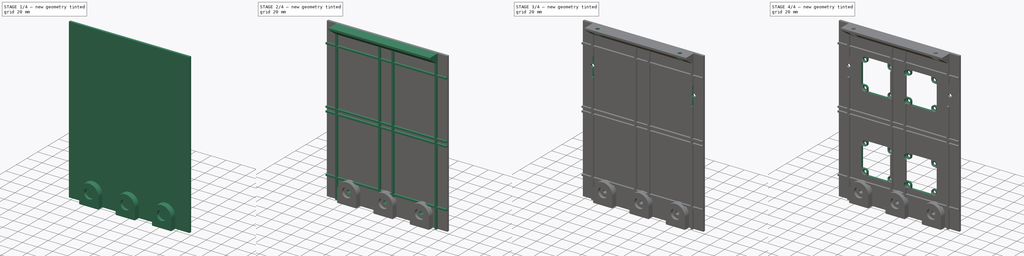
[diagram: build sequence overview — one tinted view per stage of 4, left to right]
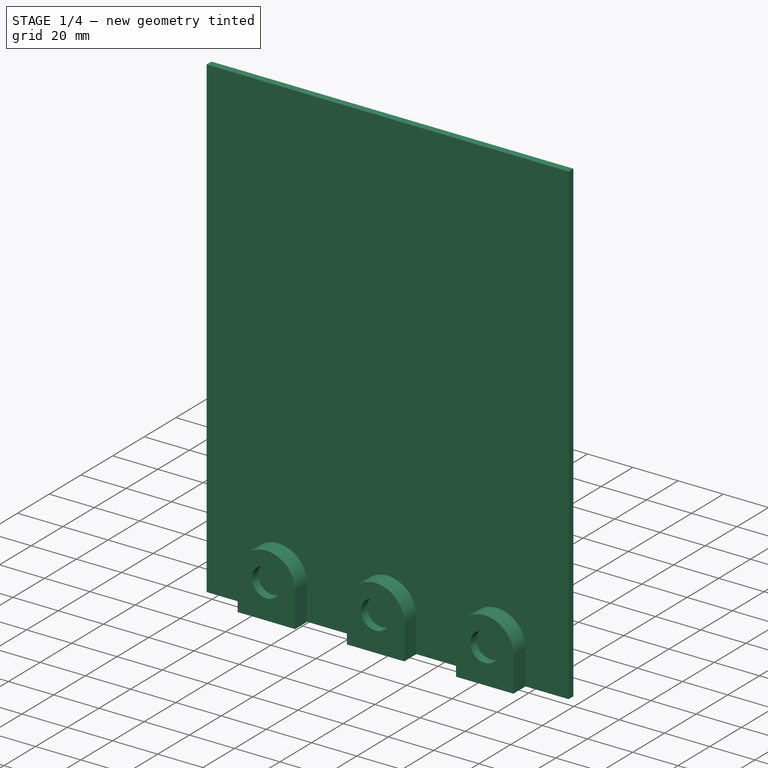
[diagram: stage 1 of 4 — iso view after this stage's code; geometry added in this stage tinted green]
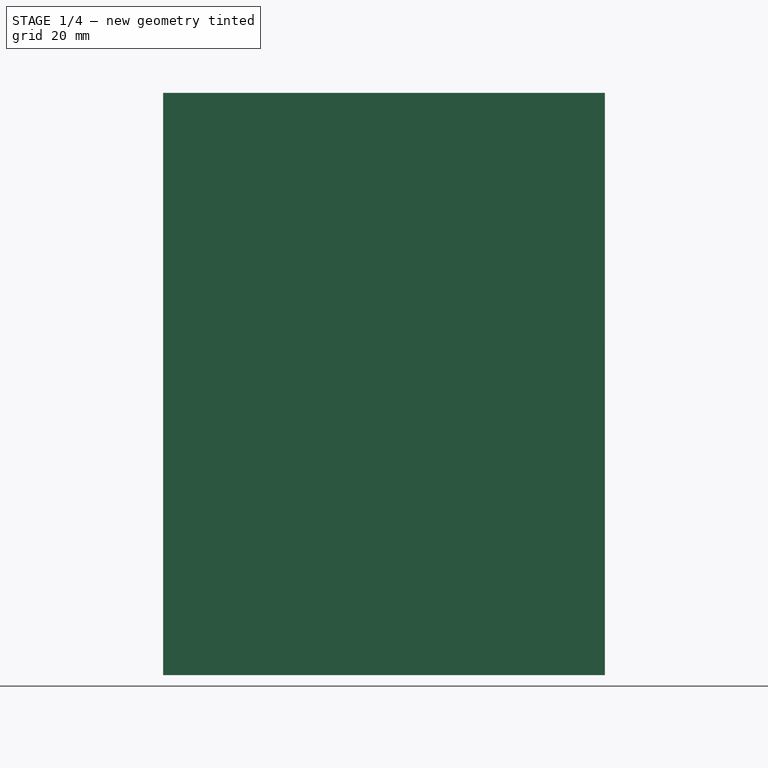
[diagram: stage 1 of 4 — front view after this stage's code; geometry added in this stage tinted green]
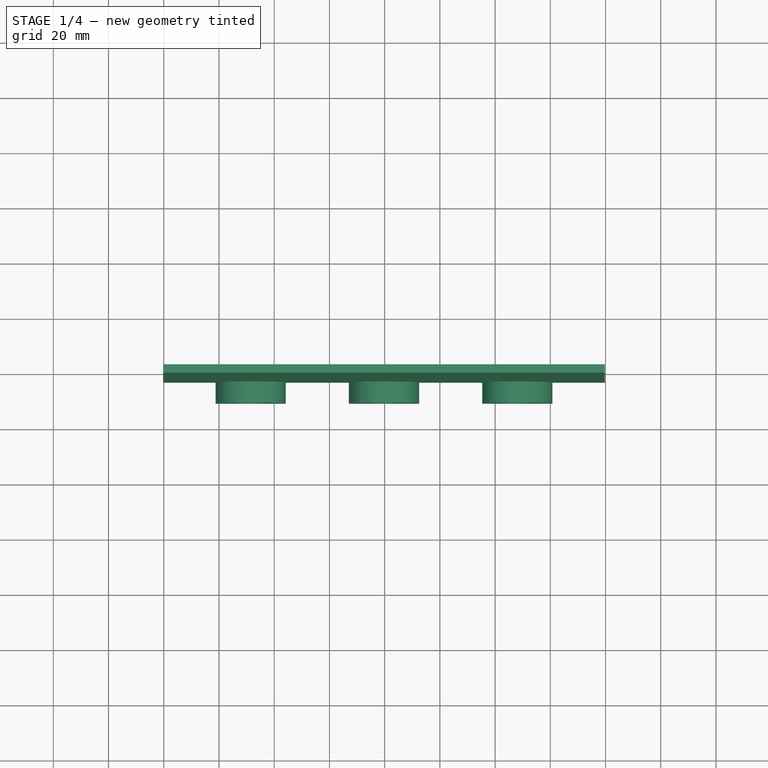
[diagram: stage 1 of 4 — top view after this stage's code; geometry added in this stage tinted green]
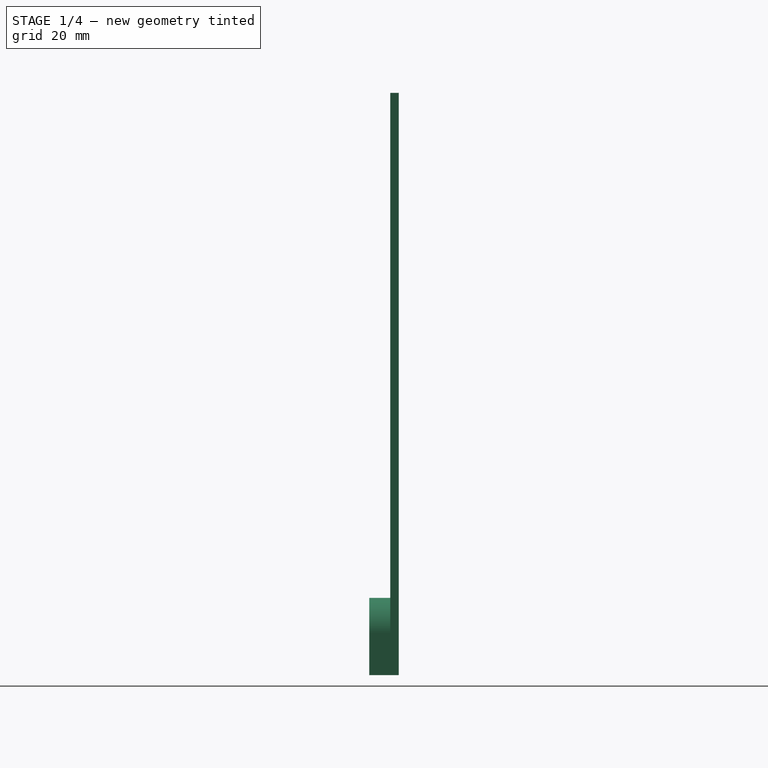
[diagram: stage 1 of 4 — right view after this stage's code; geometry added in this stage tinted green]
FCSTD DOCUMENT  (FreeCAD 0.18R16117 (Git))
Label: LEDs_1
License: All rights reserved
LicenseURL: http://en.wikipedia.org/wiki/All_rights_reserved
objects: Sketcher::SketchObject×13, PartDesign::Pocket×7, PartDesign::Pad×4, PartDesign::Hole×2, PartDesign::Body×1
note: 40 computed .brp shape members not serialized (recipe doc carries the construction recipe); baked Part::Feature solids carry a one-line shape summary decoded from their .brp

FEATURE [Sketcher::SketchObject] Sketch
  MapMode = 5
  Placement = pos=(0,0,0) rot=(1,0,0;1.5708rad)
  Support = -> [XZ_Plane]
  sketch-geometry (4):
    g0: LineSegment StartX=-80.246 StartY=106.834 StartZ=0 EndX=79.774 EndY=106.834 EndZ=0
    g1: LineSegment StartX=79.774 StartY=106.834 StartZ=0 EndX=79.774 EndY=-103.986 EndZ=0
    g2: LineSegment StartX=79.774 StartY=-103.986 StartZ=0 EndX=-80.246 EndY=-103.986 EndZ=0
    g3: LineSegment StartX=-80.246 StartY=-103.986 StartZ=0 EndX=-80.246 EndY=106.834 EndZ=0
  constraints (10):
    c: Coincident(g0,g1)
    c: Coincident(g1,g2)
    c: Coincident(g2,g3)
    c: Coincident(g3,g0)
    c: Horizontal(g0)
    c: Horizontal(g2)
    c: Vertical(g1)
    c: Vertical(g3)
    c: Distance(g2) = 160.02
    c: Distance(g1) = 210.82
FEATURE [PartDesign::Pad] Pad
  Length = 3.048
  Length2 = 100
  Placement = pos=(0,0,0) rot=(1,0,0;1.5708rad)
  Profile = -> Sketch
  Type = 0
FEATURE [Sketcher::SketchObject] Sketch001
  ExternalGeometry = -> [Pad]
  MapMode = 5
  Placement = pos=(0,-3.048,0) rot=(1,0,0;1.5708rad)
  Support = -> [Pad]
  sketch-geometry (17):
    g0: LineSegment [constr] StartX=-80.246 StartY=-88.7463 StartZ=0 EndX=-48.496 EndY=-88.7463 EndZ=0
    g1: LineSegment [constr] StartX=-48.496 StartY=-88.7463 StartZ=0 EndX=-0.235968 EndY=-88.7463 EndZ=0
    g2: LineSegment [constr] StartX=-0.235968 StartY=-88.7463 StartZ=0 EndX=48.024 EndY=-88.7463 EndZ=0
    g3: LineSegment [constr] StartX=48.024 StartY=-88.7463 StartZ=0 EndX=79.774 EndY=-88.7463 EndZ=0
    g4: LineSegment [constr] StartX=-48.496 StartY=-88.7463 StartZ=0 EndX=-48.496 EndY=-103.986 EndZ=0
    g5: LineSegment StartX=-35.796 StartY=-88.7463 StartZ=0 EndX=-35.796 EndY=-103.986 EndZ=0
    g6: LineSegment StartX=-35.796 StartY=-103.986 StartZ=0 EndX=-61.196 EndY=-103.986 EndZ=0
    g7: LineSegment StartX=-61.196 StartY=-103.986 StartZ=0 EndX=-61.196 EndY=-88.7463 EndZ=0
    g8: LineSegment StartX=12.464 StartY=-88.7463 StartZ=0 EndX=12.464 EndY=-103.986 EndZ=0
    g9: LineSegment StartX=12.464 StartY=-103.986 StartZ=0 EndX=-12.936 EndY=-103.986 EndZ=0
    g10: LineSegment StartX=-12.936 StartY=-103.986 StartZ=0 EndX=-12.936 EndY=-88.7463 EndZ=0
    g11: LineSegment StartX=60.724 StartY=-88.7463 StartZ=0 EndX=60.724 EndY=-103.986 EndZ=0
    g12: LineSegment StartX=60.724 StartY=-103.986 StartZ=0 EndX=35.324 EndY=-103.986 EndZ=0
    g13: LineSegment StartX=35.324 StartY=-103.986 StartZ=0 EndX=35.324 EndY=-88.7463 EndZ=0
    g14: ArcOfCircle CenterX=-48.496 CenterY=-88.7463 CenterZ=0 NormalX=0 NormalY=0 NormalZ=1 AngleXU=0 Radius=12.7 StartAngle=8e-16 EndAngle=3.14159
    g15: ArcOfCircle CenterX=-0.235968 CenterY=-88.7463 CenterZ=0 NormalX=0 NormalY=0 NormalZ=1 AngleXU=0 Radius=12.7 StartAngle=-9e-16 EndAngle=3.14159
    g16: ArcOfCircle CenterX=48.024 CenterY=-88.7463 CenterZ=0 NormalX=0 NormalY=0 NormalZ=1 AngleXU=0 Radius=12.7 StartAngle=-1.8e-15 EndAngle=3.14159
  constraints (52):
    c: PointOnObject(g0,g-4)
    c: Horizontal(g0)
    c: Coincident(g1,g0)
    c: Horizontal(g1)
    c: Coincident(g2,g1)
    c: Horizontal(g2)
    c: Coincident(g3,g2)
    c: PointOnObject(g3,g-5)
    c: Horizontal(g3)
    c: Coincident(g4,g0)
    c: PointOnObject(g4,g-3)
    c: Vertical(g4)
    c: Equal(g0,g3)
    c: Equal(g1,g2)
    c: Distance(g4) = 15.24
    c: Distance(g0) = 31.75
    c: Coincident(g5,g6)
    c: Coincident(g6,g7)
    c: Horizontal(g6)
    c: Vertical(g5)
    c: Vertical(g7)
    c: PointOnObject(g7,g0)
    c: PointOnObject(g5,g-3)
    c: Coincident(g8,g9)
    c: Coincident(g9,g10)
    c: Horizontal(g9)
    c: Vertical(g8)
    c: Vertical(g10)
    c: PointOnObject(g10,g1)
    c: PointOnObject(g8,g-3)
    c: Coincident(g11,g12)
    c: Coincident(g12,g13)
    c: Horizontal(g12)
    c: Vertical(g11)
    c: Vertical(g13)
    c: PointOnObject(g13,g2)
    c: PointOnObject(g12,g-3)
    c: Coincident(g14,g0)
    c: Coincident(g14,g5)
    c: Coincident(g14,g7)
    c: Coincident(g15,g1)
    c: Coincident(g15,g10)
    c: Coincident(g15,g8)
    c: Coincident(g16,g2)
    c: Coincident(g16,g13)
    c: Coincident(g16,g11)
    c: PointOnObject(g11,g3)
    c: PointOnObject(g8,g2)
    c: PointOnObject(g5,g1)
    c: Diameter(g14) = 25.4
    c: Equal(g14,g15)
    c: Equal(g15,g16)
FEATURE [PartDesign::Pad] Pad001
  BaseFeature = -> Pad
  Length = 7.62
  Length2 = 100
  Placement = pos=(0,0,0) rot=(1,0,0;1.5708rad)
  Profile = -> Sketch001
  Type = 0
FEATURE [Sketcher::SketchObject] Sketch002
  ExternalGeometry = -> [Pad001]
  MapMode = 5
  Placement = pos=(0,-10.668,0) rot=(1,0,0;1.5708rad)
  Support = -> [Pad001]
  sketch-geometry (8):
    g0: LineSegment [constr] StartX=-80.246 StartY=-88.7463 StartZ=0 EndX=-48.496 EndY=-88.7463 EndZ=0
    g1: LineSegment [constr] StartX=-48.496 StartY=-88.7463 StartZ=0 EndX=-0.235968 EndY=-88.7463 EndZ=0
    g2: LineSegment [constr] StartX=-0.235968 StartY=-88.7463 StartZ=0 EndX=48.024 EndY=-88.7463 EndZ=0
    g3: LineSegment [constr] StartX=48.024 StartY=-88.7463 StartZ=0 EndX=79.774 EndY=-88.7463 EndZ=0
    g4: LineSegment [constr] StartX=-48.496 StartY=-88.7463 StartZ=0 EndX=-48.496 EndY=-103.986 EndZ=0
    g5: Circle CenterX=-48.496 CenterY=-88.7463 CenterZ=0 NormalX=0 NormalY=0 NormalZ=1 AngleXU=0 Radius=6.35
    g6: Circle CenterX=-0.235968 CenterY=-88.7463 CenterZ=0 NormalX=0 NormalY=0 NormalZ=1 AngleXU=0 Radius=6.35
    g7: Circle CenterX=48.024 CenterY=-88.7463 CenterZ=0 NormalX=0 NormalY=0 NormalZ=1 AngleXU=0 Radius=6.35
  constraints (22):
    c: PointOnObject(g0,g-3)
    c: Horizontal(g0)
    c: Coincident(g1,g0)
    c: Horizontal(g1)
    c: Coincident(g2,g1)
    c: Horizontal(g2)
    c: Coincident(g3,g2)
    c: PointOnObject(g3,g-7)
    c: Horizontal(g3)
    c: Coincident(g4,g0)
    c: PointOnObject(g4,g-4)
    c: Vertical(g4)
    c: Equal(g0,g3)
    c: Equal(g2,g1)
    c: Distance(g0) = 31.75
    c: Distance(g4) = 15.24
    c: Coincident(g5,g0)
    c: Coincident(g7,g2)
    c: Equal(g5,g6)
    c: Equal(g6,g7)
    c: Diameter(g5) = 12.7
    c: Coincident(g6,g1)
FEATURE [PartDesign::Pocket] Pocket
  BaseFeature = -> Pad001
  Length = 3.81
  Length2 = 100
  Placement = pos=(0,0,0) rot=(1,0,0;1.5708rad)
  Profile = -> Sketch002
  Type = 0
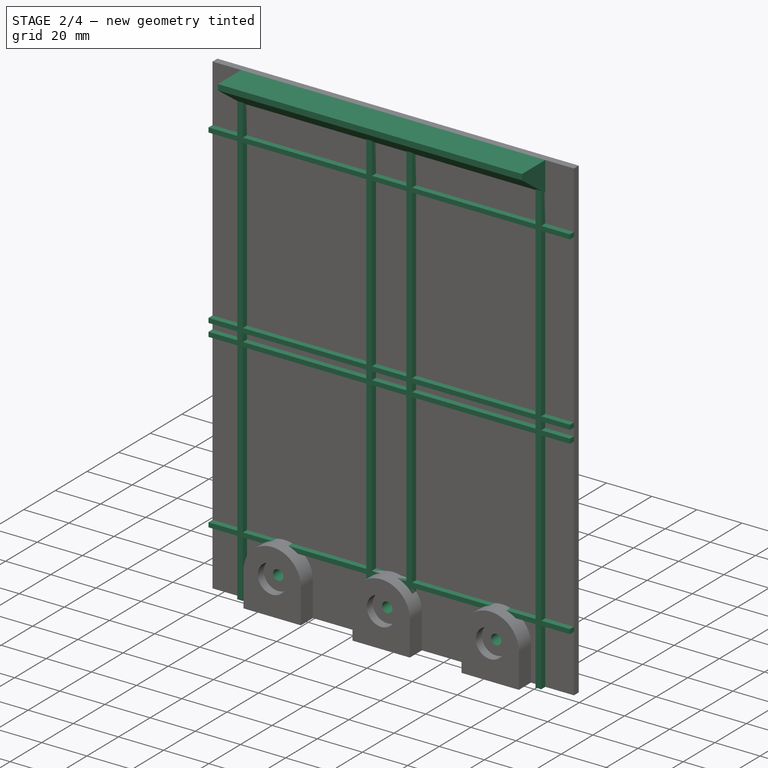
[diagram: stage 2 of 4 — iso view after this stage's code; geometry added in this stage tinted green]
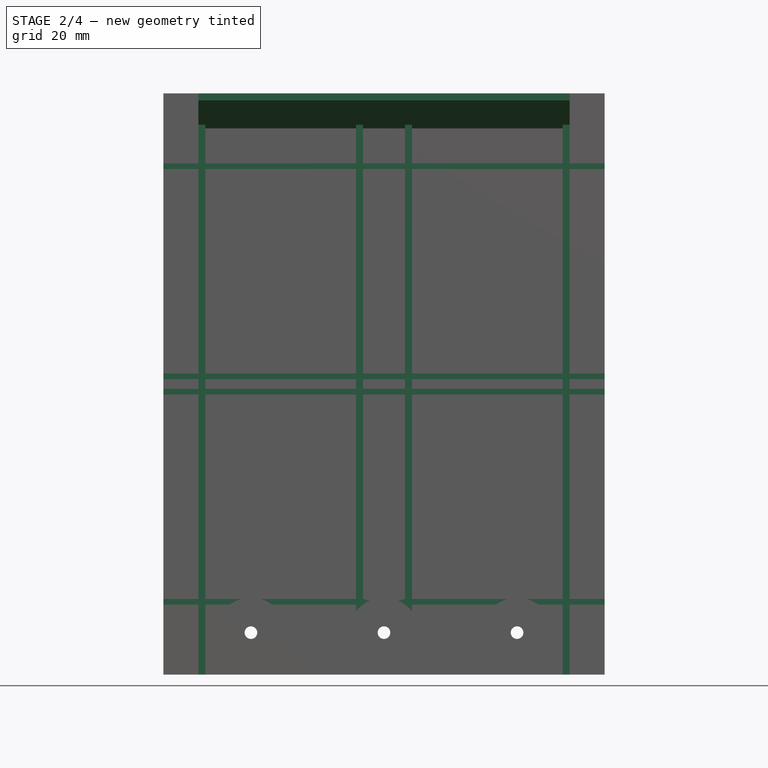
[diagram: stage 2 of 4 — front view after this stage's code; geometry added in this stage tinted green]
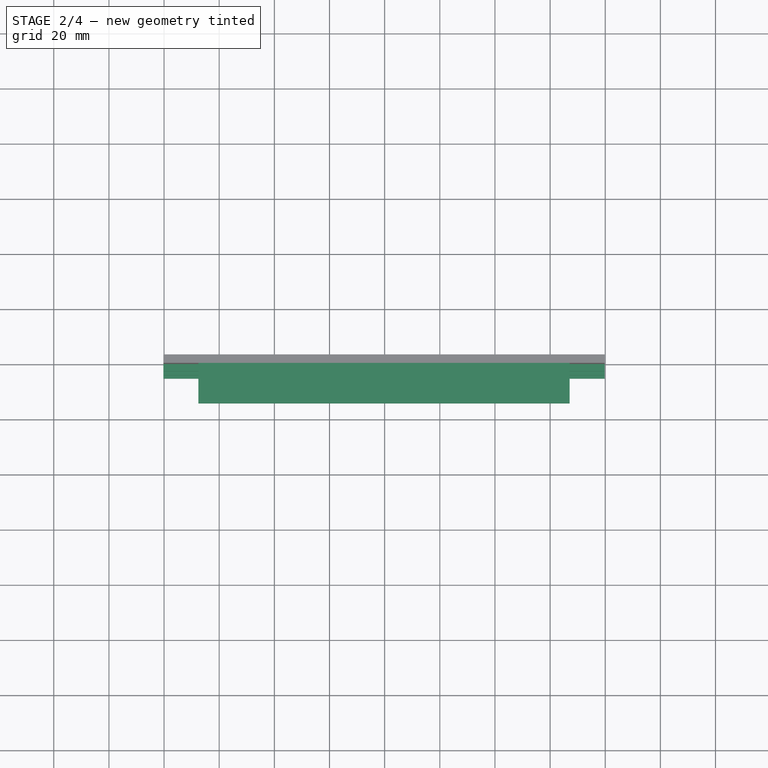
[diagram: stage 2 of 4 — top view after this stage's code; geometry added in this stage tinted green]
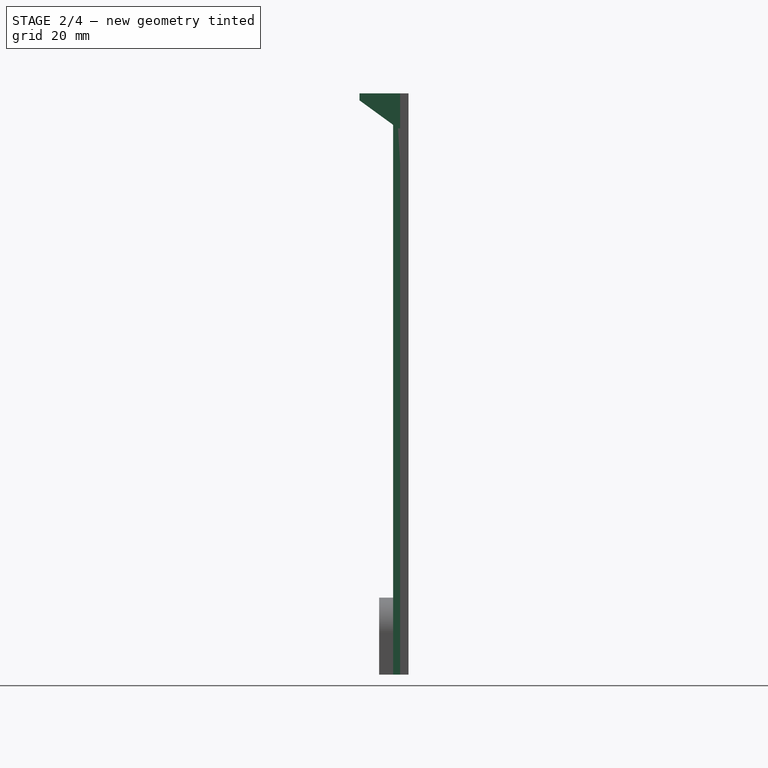
[diagram: stage 2 of 4 — right view after this stage's code; geometry added in this stage tinted green]
FEATURE [Sketcher::SketchObject] Sketch003
  ExternalGeometry = -> [Pocket]
  MapMode = 5
  Placement = pos=(0,-6.858,-7e-16) rot=(1,0,0;1.5708rad)
  Support = -> [Pocket]
  sketch-geometry (3):
    g0: Circle CenterX=-48.496 CenterY=-88.7463 CenterZ=0 NormalX=0 NormalY=0 NormalZ=1 AngleXU=0 Radius=2.286
    g1: Circle CenterX=-0.235968 CenterY=-88.7463 CenterZ=0 NormalX=0 NormalY=0 NormalZ=1 AngleXU=0 Radius=2.286
    g2: Circle CenterX=48.024 CenterY=-88.7463 CenterZ=0 NormalX=0 NormalY=0 NormalZ=1 AngleXU=0 Radius=2.286
  constraints (6):
    c: Coincident(g0,g-3)
    c: Coincident(g1,g-4)
    c: Coincident(g2,g-5)
    c: Equal(g0,g1)
    c: Equal(g1,g2)
    c: Diameter(g0) = 4.572
FEATURE [PartDesign::Pocket] Pocket001
  BaseFeature = -> Pocket
  Length = 8.89
  Length2 = 100
  Placement = pos=(0,0,0) rot=(1,0,0;1.5708rad)
  Profile = -> Sketch003
  Type = 0
FEATURE [Sketcher::SketchObject] Sketch004
  ExternalGeometry = -> [Pocket001]
  MapMode = 5
  Placement = pos=(0,-3.048,0) rot=(1,0,0;1.5708rad)
  Support = -> [Pocket001]
  sketch-geometry (191):
    g0: LineSegment [constr] StartX=-67.546 StartY=106.834 StartZ=0 EndX=-65.006 EndY=106.834 EndZ=0
    g1: LineSegment [constr] StartX=-65.006 StartY=106.834 StartZ=0 EndX=-65.006 EndY=-103.986 EndZ=0
    g2: LineSegment [constr] StartX=-65.006 StartY=-103.986 StartZ=0 EndX=-67.546 EndY=-103.986 EndZ=0
    g3: LineSegment [constr] StartX=-67.546 StartY=-103.986 StartZ=0 EndX=-67.546 EndY=106.834 EndZ=0
    g4: LineSegment [constr] StartX=-7.85597 StartY=106.834 StartZ=0 EndX=-10.396 EndY=106.834 EndZ=0
    g5: LineSegment [constr] StartX=-10.396 StartY=106.834 StartZ=0 EndX=-10.396 EndY=-103.986 EndZ=0
    g6: LineSegment [constr] StartX=-10.396 StartY=-103.986 StartZ=0 EndX=-7.85597 EndY=-103.986 EndZ=0
    g7: LineSegment [constr] StartX=-7.85597 StartY=-103.986 StartZ=0 EndX=-7.85597 EndY=106.834 EndZ=0
    g8: LineSegment [constr] StartX=7.38403 StartY=-103.986 StartZ=0 EndX=9.92403 EndY=-103.986 EndZ=0
    g9: LineSegment [constr] StartX=9.92403 StartY=-103.986 StartZ=0 EndX=9.92403 EndY=106.834 EndZ=0
    g10: LineSegment [constr] StartX=9.92403 StartY=106.834 StartZ=0 EndX=7.38403 EndY=106.834 EndZ=0
    g11: LineSegment [constr] StartX=7.38403 StartY=106.834 StartZ=0 EndX=7.38403 EndY=-103.986 EndZ=0
    g12: LineSegment [constr] StartX=64.534 StartY=106.834 StartZ=0 EndX=67.074 EndY=106.834 EndZ=0
    g13: LineSegment [constr] StartX=67.074 StartY=106.834 StartZ=0 EndX=67.074 EndY=-103.986 EndZ=0
    g14: LineSegment [constr] StartX=67.074 StartY=-103.986 StartZ=0 EndX=64.534 EndY=-103.986 EndZ=0
    g15: LineSegment [constr] StartX=64.534 StartY=-103.986 StartZ=0 EndX=64.534 EndY=106.834 EndZ=0
    g16: LineSegment [constr] StartX=-80.246 StartY=81.4337 StartZ=0 EndX=79.774 EndY=81.4337 EndZ=0
    g17: LineSegment [constr] StartX=79.774 StartY=81.4337 StartZ=0 EndX=79.774 EndY=79.4017 EndZ=0
    g18: LineSegment [constr] StartX=79.774 StartY=79.4017 StartZ=0 EndX=-80.246 EndY=79.4017 EndZ=0
    g19: LineSegment [constr] StartX=-80.246 StartY=79.4017 StartZ=0 EndX=-80.246 EndY=81.4337 EndZ=0
    g20: LineSegment [constr] StartX=-80.246 StartY=5.23366 StartZ=0 EndX=79.774 EndY=5.23366 EndZ=0
    g21: LineSegment [constr] StartX=79.774 StartY=5.23366 StartZ=0 EndX=79.774 EndY=3.20166 EndZ=0
    g22: LineSegment [constr] StartX=79.774 StartY=3.20166 StartZ=0 EndX=-80.246 EndY=3.20166 EndZ=0
    g23: LineSegment [constr] StartX=-80.246 StartY=3.20166 StartZ=0 EndX=-80.246 EndY=5.23366 EndZ=0
    g24: LineSegment [constr] StartX=-80.246 StartY=-0.354336 StartZ=0 EndX=79.774 EndY=-0.354336 EndZ=0
    g25: LineSegment [constr] StartX=79.774 StartY=-0.354336 StartZ=0 EndX=79.774 EndY=-2.38634 EndZ=0
    g26: LineSegment [constr] StartX=79.774 StartY=-2.38634 StartZ=0 EndX=-80.246 EndY=-2.38634 EndZ=0
    g27: LineSegment [constr] StartX=-80.246 StartY=-2.38634 StartZ=0 EndX=-80.246 EndY=-0.354336 EndZ=0
    g28: LineSegment [constr] StartX=-80.246 StartY=-76.5543 StartZ=0 EndX=79.774 EndY=-76.5543 EndZ=0
    g29: LineSegment [constr] StartX=79.774 StartY=-76.5543 StartZ=0 EndX=79.774 EndY=-78.5863 EndZ=0
    g30: LineSegment [constr] StartX=79.774 StartY=-78.5863 StartZ=0 EndX=-80.246 EndY=-78.5863 EndZ=0
    g31: LineSegment [constr] StartX=-80.246 StartY=-78.5863 StartZ=0 EndX=-80.246 EndY=-76.5543 EndZ=0
    g32: GeomPoint X=-67.546 Y=81.4337 Z=0
    g33: GeomPoint X=-65.006 Y=81.4337 Z=0
    g34: GeomPoint X=-65.006 Y=79.4017 Z=0
    g35: GeomPoint X=-67.546 Y=79.4017 Z=0
    g36: GeomPoint X=-10.396 Y=81.4337 Z=0
    g37: GeomPoint X=-7.85597 Y=81.4337 Z=0
    g38: GeomPoint X=-10.396 Y=79.4017 Z=0
    g39: GeomPoint X=-7.85597 Y=79.4017 Z=0
    g40: GeomPoint X=7.38403 Y=79.4017 Z=0
    g41: GeomPoint X=7.38403 Y=81.4337 Z=0
    g42: GeomPoint X=9.92403 Y=79.4017 Z=0
    g43: GeomPoint X=9.92403 Y=81.4337 Z=0
    g44: GeomPoint X=64.534 Y=81.4337 Z=0
    g45: GeomPoint X=67.074 Y=81.4337 Z=0
    g46: GeomPoint X=67.074 Y=79.4017 Z=0
    g47: GeomPoint X=64.534 Y=79.4017 Z=0
    g48: GeomPoint X=-67.546 Y=5.23366 Z=0
    g49: GeomPoint X=-67.546 Y=3.20166 Z=0
    g50: GeomPoint X=-65.006 Y=3.20166 Z=0
    g51: GeomPoint X=-65.006 Y=5.23366 Z=0
    g52: GeomPoint X=-10.396 Y=5.23366 Z=0
    g53: GeomPoint X=-7.85597 Y=5.23366 Z=0
    g54: GeomPoint X=-10.396 Y=3.20166 Z=0
    g55: GeomPoint X=-7.85597 Y=3.20166 Z=0
    g56: GeomPoint X=-10.396 Y=-0.354336 Z=0
    g57: GeomPoint X=-7.85597 Y=-0.354336 Z=0
    g58: GeomPoint X=-10.396 Y=-2.38634 Z=0
    g59: GeomPoint X=-7.85597 Y=-2.38634 Z=0
    g60: GeomPoint X=7.38403 Y=-0.354336 Z=0
    g61: GeomPoint X=9.92403 Y=-0.354336 Z=0
    g62: GeomPoint X=7.38403 Y=-2.38634 Z=0
    g63: GeomPoint X=9.92403 Y=-2.38634 Z=0
    g64: GeomPoint X=7.38403 Y=5.23366 Z=0
    g65: GeomPoint X=9.92403 Y=5.23366 Z=0
    g66: GeomPoint X=7.38403 Y=3.20166 Z=0
    g67: GeomPoint X=9.92403 Y=3.20166 Z=0
    g68: GeomPoint X=64.534 Y=5.23366 Z=0
    g69: GeomPoint X=64.534 Y=3.20166 Z=0
    g70: GeomPoint X=67.074 Y=5.23366 Z=0
    g71: GeomPoint X=67.074 Y=3.20166 Z=0
    g72: GeomPoint X=64.534 Y=-0.354336 Z=0
    g73: GeomPoint X=67.074 Y=-0.354336 Z=0
    g74: GeomPoint X=67.074 Y=-2.38634 Z=0
    g75: GeomPoint X=64.534 Y=-2.38634 Z=0
    g76: GeomPoint X=-67.546 Y=-76.5543 Z=0
    g77: GeomPoint X=-67.546 Y=-78.5863 Z=0
    g78: GeomPoint X=-65.006 Y=-78.5863 Z=0
    g79: GeomPoint X=-65.006 Y=-76.5543 Z=0
    g80: GeomPoint X=-10.396 Y=-76.5543 Z=0
    g81: GeomPoint X=-7.85597 Y=-76.5543 Z=0
    g82: GeomPoint X=-7.85597 Y=-78.5863 Z=0
    g83: GeomPoint X=-10.396 Y=-78.5863 Z=0
    g84: GeomPoint X=7.38403 Y=-76.5543 Z=0
    g85: GeomPoint X=9.92403 Y=-76.5543 Z=0
    g86: GeomPoint X=9.92403 Y=-78.5863 Z=0
    g87: GeomPoint X=7.38403 Y=-78.5863 Z=0
    g88: GeomPoint X=64.534 Y=-76.5543 Z=0
    g89: GeomPoint X=67.074 Y=-76.5543 Z=0
    g90: GeomPoint X=64.534 Y=-78.5863 Z=0
    g91: GeomPoint X=67.074 Y=-78.5863 Z=0
    g92: GeomPoint X=-67.546 Y=-0.354336 Z=0
    g93: GeomPoint X=-65.006 Y=-0.354336 Z=0
    g94: GeomPoint X=-65.006 Y=-2.38634 Z=0
    g95: GeomPoint X=-67.546 Y=-2.38634 Z=0
    g96: LineSegment StartX=-67.546 StartY=106.834 StartZ=0 EndX=-65.006 EndY=106.834 EndZ=0
    g97: LineSegment StartX=-65.006 StartY=106.834 StartZ=0 EndX=-65.006 EndY=81.4337 EndZ=0
    g98: LineSegment StartX=-65.006 StartY=81.4337 StartZ=0 EndX=-10.396 EndY=81.4337 EndZ=0
    g99: LineSegment StartX=-10.396 StartY=81.4337 StartZ=0 EndX=-10.396 EndY=106.834 EndZ=0
    g100: LineSegment StartX=-10.396 StartY=106.834 StartZ=0 EndX=-7.85597 EndY=106.834 EndZ=0
    g101: LineSegment StartX=7.38403 StartY=106.834 StartZ=0 EndX=9.92403 EndY=106.834 EndZ=0
    g102: LineSegment StartX=64.534 StartY=106.834 StartZ=0 EndX=67.074 EndY=106.834 EndZ=0
    g103: LineSegment StartX=79.774 StartY=81.4337 StartZ=0 EndX=79.774 EndY=79.4017 EndZ=0
    g104: LineSegment StartX=79.774 StartY=5.23366 StartZ=0 EndX=79.774 EndY=3.20166 EndZ=0
    g105: LineSegment StartX=79.774 StartY=-0.354336 StartZ=0 EndX=79.774 EndY=-2.38634 EndZ=0
    g106: LineSegment StartX=79.774 StartY=-76.5543 StartZ=0 EndX=79.774 EndY=-78.5863 EndZ=0
    g107: LineSegment StartX=67.074 StartY=-103.986 StartZ=0 EndX=64.534 EndY=-103.986 EndZ=0
    g108: LineSegment StartX=9.92403 StartY=-103.986 StartZ=0 EndX=7.38403 EndY=-103.986 EndZ=0
    g109: LineSegment StartX=-7.85597 StartY=-103.986 StartZ=0 EndX=-10.396 EndY=-103.986 EndZ=0
    g110: LineSegment StartX=-65.006 StartY=-103.986 StartZ=0 EndX=-67.546 EndY=-103.986 EndZ=0
    g111: LineSegment StartX=-80.246 StartY=-78.5863 StartZ=0 EndX=-80.246 EndY=-76.5543 EndZ=0
    g112: LineSegment StartX=-80.246 StartY=-2.38634 StartZ=0 EndX=-80.246 EndY=-0.354336 EndZ=0
    g113: LineSegment StartX=-80.246 StartY=3.20166 StartZ=0 EndX=-80.246 EndY=5.23366 EndZ=0
    g114: LineSegment StartX=-80.246 StartY=79.4017 StartZ=0 EndX=-80.246 EndY=81.4337 EndZ=0
    g115: LineSegment StartX=-67.546 StartY=106.834 StartZ=0 EndX=-67.546 EndY=81.4337 EndZ=0
    g116: LineSegment StartX=-67.546 StartY=81.4337 StartZ=0 EndX=-80.246 EndY=81.4337 EndZ=0
    g117: LineSegment StartX=-80.246 StartY=79.4017 StartZ=0 EndX=-67.546 EndY=79.4017 EndZ=0
    g118: LineSegment StartX=-67.546 StartY=79.4017 StartZ=0 EndX=-67.546 EndY=5.23366 EndZ=0
    g119: LineSegment StartX=-67.546 StartY=5.23366 StartZ=0 EndX=-80.246 EndY=5.23366 EndZ=0
    g120: LineSegment StartX=-80.246 StartY=3.20166 StartZ=0 EndX=-67.546 EndY=3.20166 EndZ=0
    g121: LineSegment StartX=-67.546 StartY=3.20166 StartZ=0 EndX=-67.546 EndY=-0.354336 EndZ=0
    g122: LineSegment StartX=-67.546 StartY=-2.38634 StartZ=0 EndX=-67.546 EndY=-76.5543 EndZ=0
    g123: LineSegment StartX=-67.546 StartY=-78.5863 StartZ=0 EndX=-67.546 EndY=-103.986 EndZ=0
    g124: LineSegment StartX=-65.006 StartY=-103.986 StartZ=0 EndX=-65.006 EndY=-78.5863 EndZ=0
    g125: LineSegment StartX=-65.006 StartY=-76.5543 StartZ=0 EndX=-65.006 EndY=-2.38634 EndZ=0
    g126: LineSegment StartX=-65.006 StartY=-0.354336 StartZ=0 EndX=-65.006 EndY=3.20166 EndZ=0
    g127: LineSegment StartX=-65.006 StartY=5.23366 StartZ=0 EndX=-65.006 EndY=79.4017 EndZ=0
    g128: LineSegment StartX=-65.006 StartY=79.4017 StartZ=0 EndX=-10.396 EndY=79.4017 EndZ=0
    g129: LineSegment StartX=-7.85597 StartY=106.834 StartZ=0 EndX=-7.85597 EndY=81.4337 EndZ=0
    g130: LineSegment StartX=-7.85597 StartY=79.4017 StartZ=0 EndX=7.38403 EndY=79.4017 EndZ=0
    g131: LineSegment StartX=-7.85597 StartY=81.4337 StartZ=0 EndX=7.38403 EndY=81.4337 EndZ=0
    g132: LineSegment StartX=7.38403 StartY=106.834 StartZ=0 EndX=7.38403 EndY=81.4337 EndZ=0
    g133: LineSegment StartX=9.92403 StartY=106.834 StartZ=0 EndX=9.92403 EndY=81.4337 EndZ=0
    g134: LineSegment StartX=9.92403 StartY=81.4337 StartZ=0 EndX=64.534 EndY=81.4337 EndZ=0
    g135: LineSegment StartX=64.534 StartY=81.4337 StartZ=0 EndX=64.534 EndY=106.834 EndZ=0
    g136: LineSegment StartX=67.074 StartY=106.834 StartZ=0 EndX=67.074 EndY=81.4337 EndZ=0
    g137: LineSegment StartX=67.074 StartY=81.4337 StartZ=0 EndX=79.774 EndY=81.4337 EndZ=0
    g138: LineSegment StartX=67.074 StartY=79.4017 StartZ=0 EndX=79.774 EndY=79.4017 EndZ=0
    g139: LineSegment StartX=67.074 StartY=79.4017 StartZ=0 EndX=67.074 EndY=5.23366 EndZ=0
    g140: LineSegment StartX=67.074 StartY=5.23366 StartZ=0 EndX=79.774 EndY=5.23366 EndZ=0
    g141: LineSegment StartX=67.074 StartY=3.20166 StartZ=0 EndX=79.774 EndY=3.20166 EndZ=0
    g142: LineSegment StartX=67.074 StartY=3.20166 StartZ=0 EndX=67.074 EndY=-0.354336 EndZ=0
    g143: LineSegment StartX=67.074 StartY=-0.354336 StartZ=0 EndX=79.774 EndY=-0.354336 EndZ=0
    g144: LineSegment StartX=79.774 StartY=-2.38634 StartZ=0 EndX=67.074 EndY=-2.38634 EndZ=0
    g145: LineSegment StartX=67.074 StartY=-2.38634 StartZ=0 EndX=67.074 EndY=-76.5543 EndZ=0
    g146: LineSegment StartX=67.074 StartY=-76.5543 StartZ=0 EndX=79.774 EndY=-76.5543 EndZ=0
    g147: LineSegment StartX=67.074 StartY=-78.5863 StartZ=0 EndX=79.774 EndY=-78.5863 EndZ=0
    g148: LineSegment StartX=67.074 StartY=-78.5863 StartZ=0 EndX=67.074 EndY=-103.986 EndZ=0
    g149: LineSegment StartX=64.534 StartY=-103.986 StartZ=0 EndX=64.534 EndY=-78.5863 EndZ=0
    g150: LineSegment StartX=64.534 StartY=-76.5543 StartZ=0 EndX=64.534 EndY=-2.38634 EndZ=0
    g151: LineSegment StartX=64.534 StartY=-0.354336 StartZ=0 EndX=64.534 EndY=3.20166 EndZ=0
    g152: LineSegment StartX=64.534 StartY=5.23366 StartZ=0 EndX=64.534 EndY=79.4017 EndZ=0
    g153: LineSegment StartX=64.534 StartY=79.4017 StartZ=0 EndX=9.92403 EndY=79.4017 EndZ=0
    g154: LineSegment StartX=9.92403 StartY=79.4017 StartZ=0 EndX=9.92403 EndY=5.23366 EndZ=0
    g155: LineSegment StartX=9.92403 StartY=3.20166 StartZ=0 EndX=9.92403 EndY=-76.5543 EndZ=0
    g156: LineSegment StartX=9.92403 StartY=-78.5863 StartZ=0 EndX=9.92403 EndY=-103.986 EndZ=0
    g157: LineSegment StartX=7.38403 StartY=-103.986 StartZ=0 EndX=7.38403 EndY=-78.5863 EndZ=0
    g158: LineSegment StartX=7.38403 StartY=-76.5543 StartZ=0 EndX=7.38403 EndY=-2.38634 EndZ=0
    g159: LineSegment StartX=7.38403 StartY=-0.354336 StartZ=0 EndX=7.38403 EndY=3.20166 EndZ=0
    g160: LineSegment StartX=7.38403 StartY=5.23366 StartZ=0 EndX=7.38403 EndY=79.4017 EndZ=0
    g161: LineSegment StartX=9.92403 StartY=5.23366 StartZ=0 EndX=64.534 EndY=5.23366 EndZ=0
    g162: LineSegment StartX=9.92403 StartY=3.20166 StartZ=0 EndX=64.534 EndY=3.20166 EndZ=0
    g163: LineSegment StartX=64.534 StartY=-0.354336 StartZ=0 EndX=9.92403 EndY=-0.354336 EndZ=0
    g164: LineSegment StartX=9.92403 StartY=-2.38634 StartZ=0 EndX=64.534 EndY=-2.38634 EndZ=0
    g165: LineSegment StartX=9.92403 StartY=-76.5543 StartZ=0 EndX=64.534 EndY=-76.5543 EndZ=0
    g166: LineSegment StartX=9.92403 StartY=-78.5863 StartZ=0 EndX=64.534 EndY=-78.5863 EndZ=0
    g167: LineSegment StartX=-7.85597 StartY=-76.5543 StartZ=0 EndX=7.38403 EndY=-76.5543 EndZ=0
    g168: LineSegment StartX=-7.85597 StartY=-78.5863 StartZ=0 EndX=7.38403 EndY=-78.5863 EndZ=0
    g169: LineSegment StartX=-7.85597 StartY=-103.986 StartZ=0 EndX=-7.85597 EndY=-78.5863 EndZ=0
    g170: LineSegment StartX=-10.396 StartY=-78.5863 StartZ=0 EndX=-10.396 EndY=-103.986 EndZ=0
    g171: LineSegment StartX=-10.396 StartY=-76.5543 StartZ=0 EndX=-10.396 EndY=-2.38634 EndZ=0
    g172: LineSegment StartX=-7.85597 StartY=-2.38634 StartZ=0 EndX=7.38403 EndY=-2.38634 EndZ=0
    g173: LineSegment StartX=7.38403 StartY=-0.354336 StartZ=0 EndX=-7.85597 EndY=-0.354336 EndZ=0
    g174: LineSegment StartX=-7.85597 StartY=3.20166 StartZ=0 EndX=7.38403 EndY=3.20166 EndZ=0
    g175: LineSegment StartX=-7.85597 StartY=-2.38634 StartZ=0 EndX=-7.85597 EndY=-76.5543 EndZ=0
    g176: LineSegment StartX=-7.85597 StartY=5.23366 StartZ=0 EndX=7.38403 EndY=5.23366 EndZ=0
    g177: LineSegment StartX=-7.85597 StartY=5.23366 StartZ=0 EndX=-7.85597 EndY=79.4017 EndZ=0
    g178: LineSegment StartX=-10.396 StartY=79.4017 StartZ=0 EndX=-10.396 EndY=5.23366 EndZ=0
    g179: LineSegment StartX=-80.246 StartY=-0.354336 StartZ=0 EndX=-67.546 EndY=-0.354336 EndZ=0
    g180: LineSegment StartX=-80.246 StartY=-2.38634 StartZ=0 EndX=-67.546 EndY=-2.38634 EndZ=0
    g181: LineSegment StartX=-65.006 StartY=-0.354336 StartZ=0 EndX=-10.396 EndY=-0.354336 EndZ=0
    g182: LineSegment StartX=-10.396 StartY=-2.38634 StartZ=0 EndX=-65.006 EndY=-2.38634 EndZ=0
    g183: LineSegment StartX=-80.246 StartY=-76.5543 StartZ=0 EndX=-67.546 EndY=-76.5543 EndZ=0
    g184: LineSegment StartX=-80.246 StartY=-78.5863 StartZ=0 EndX=-67.546 EndY=-78.5863 EndZ=0
    g185: LineSegment StartX=-65.006 StartY=-76.5543 StartZ=0 EndX=-10.396 EndY=-76.5543 EndZ=0
    g186: LineSegment StartX=-10.396 StartY=-78.5863 StartZ=0 EndX=-65.006 EndY=-78.5863 EndZ=0
    g187: LineSegment StartX=-65.006 StartY=5.23366 StartZ=0 EndX=-10.396 EndY=5.23366 EndZ=0
    g188: LineSegment StartX=-10.396 StartY=3.20166 StartZ=0 EndX=-10.396 EndY=-0.354336 EndZ=0
    g189: LineSegment StartX=-7.85597 StartY=-0.354336 StartZ=0 EndX=-7.85597 EndY=3.20166 EndZ=0
    g190: LineSegment StartX=-10.396 StartY=3.20166 StartZ=0 EndX=-65.006 EndY=3.20166 EndZ=0
  constraints (414):
    c: Coincident(g0,g1)
    c: Coincident(g1,g2)
    c: Coincident(g2,g3)
    c: Coincident(g3,g0)
    c: Horizontal(g0)
    c: Horizontal(g2)
    c: Vertical(g1)
    c: Vertical(g3)
    c: PointOnObject(g0,g-3)
    c: PointOnObject(g1,g-6)
    c: Coincident(g4,g5)
    c: Coincident(g5,g6)
    c: Coincident(g6,g7)
    c: Coincident(g7,g4)
    c: Horizontal(g4)
    c: Horizontal(g6)
    c: Vertical(g5)
    c: Vertical(g7)
    c: PointOnObject(g4,g-3)
    c: PointOnObject(g5,g-9)
    c: Coincident(g8,g9)
    c: Coincident(g9,g10)
    c: Coincident(g10,g11)
    c: Coincident(g11,g8)
    c: Horizontal(g8)
    c: Horizontal(g10)
    c: Vertical(g9)
    c: Vertical(g11)
    c: PointOnObject(g9,g-3)
    c: Coincident(g12,g13)
    c: Coincident(g13,g14)
    c: Coincident(g14,g15)
    c: Coincident(g15,g12)
    c: Horizontal(g12)
    c: Horizontal(g14)
    c: Vertical(g13)
    c: Vertical(g15)
    c: PointOnObject(g12,g-3)
    c: PointOnObject(g13,g-12)
    c: PointOnObject(g8,g-9)
    c: Equal(g0,g4)
    c: Equal(g4,g10)
    c: Equal(g10,g12)
    c: Distance(g0) = 2.54
    c: Distance(g-4,g0) = 12.7
    c: Distance(g12,g-5) = 12.7
    c: Distance(g-4,g4) = 69.85
    c: Distance(g9,g-5) = 69.85
    c: Coincident(g16,g17)
    c: Coincident(g17,g18)
    c: Coincident(g18,g19)
    c: Coincident(g19,g16)
    c: Horizontal(g16)
    c: Horizontal(g18)
    c: Vertical(g17)
    c: Vertical(g19)
    c: PointOnObject(g16,g-4)
    c: PointOnObject(g17,g-5)
    c: Coincident(g20,g21)
    c: Coincident(g21,g22)
    c: Coincident(g22,g23)
    c: Coincident(g23,g20)
    c: Horizontal(g20)
    c: Horizontal(g22)
    c: Vertical(g21)
    c: Vertical(g23)
    c: PointOnObject(g20,g-4)
    c: PointOnObject(g21,g-5)
    c: Coincident(g24,g25)
    c: Coincident(g25,g26)
    c: Coincident(g26,g27)
    c: Coincident(g27,g24)
    c: Horizontal(g24)
    c: Horizontal(g26)
    c: Vertical(g25)
    c: Vertical(g27)
    c: PointOnObject(g24,g-4)
    c: PointOnObject(g25,g-5)
    c: Coincident(g28,g29)
    c: Coincident(g29,g30)
    c: Coincident(g30,g31)
    c: Coincident(g31,g28)
    c: Horizontal(g28)
    c: Horizontal(g30)
    c: Vertical(g29)
    c: Vertical(g31)
    c: PointOnObject(g28,g-4)
    c: PointOnObject(g29,g-5)
    c: Equal(g19,g23)
    c: Equal(g23,g27)
    c: Equal(g27,g31)
    c: Distance(g19) = 2.032
    c: Distance(g-4,g16) = 25.4
    c: Distance(g30,g-6) = 25.4
    c: Distance(g-6,g26) = 101.6
    c: Distance(g20,g-4) = 101.6
    c: PointOnObject(g32,g3)
    c: PointOnObject(g33,g1)
    c: PointOnObject(g34,g1)
    c: PointOnObject(g35,g3)
    c: PointOnObject(g32,g16)
    c: PointOnObject(g33,g16)
    c: PointOnObject(g34,g18)
    c: PointOnObject(g35,g18)
    c: PointOnObject(g36,g5)
    c: PointOnObject(g37,g7)
    c: PointOnObject(g38,g18)
    c: PointOnObject(g39,g7)
    c: PointOnObject(g40,g11)
    c: PointOnObject(g41,g16)
    c: PointOnObject(g43,g16)
    c: PointOnObject(g42,g9)
    c: PointOnObject(g42,g18)
    c: PointOnObject(g40,g18)
    c: PointOnObject(g41,g11)
    c: PointOnObject(g43,g9)
    c: PointOnObject(g36,g16)
    c: PointOnObject(g37,g16)
    c: PointOnObject(g39,g18)
    c: PointOnObject(g38,g5)
    c: PointOnObject(g44,g15)
    c: PointOnObject(g45,g13)
    c: PointOnObject(g46,g13)
    c: PointOnObject(g47,g15)
    c: PointOnObject(g48,g3)
    c: PointOnObject(g49,g3)
    c: PointOnObject(g50,g1)
    c: PointOnObject(g51,g1)
    c: PointOnObject(g52,g5)
    c: PointOnObject(g53,g7)
    c: PointOnObject(g54,g5)
    c: PointOnObject(g55,g7)
    c: PointOnObject(g56,g5)
    c: PointOnObject(g57,g7)
    c: PointOnObject(g58,g5)
    c: PointOnObject(g59,g7)
    c: PointOnObject(g60,g11)
    c: PointOnObject(g61,g9)
    c: PointOnObject(g62,g11)
    c: PointOnObject(g63,g9)
    c: PointOnObject(g64,g11)
    c: PointOnObject(g65,g9)
    c: PointOnObject(g66,g11)
    c: PointOnObject(g67,g9)
    c: PointOnObject(g68,g15)
    c: PointOnObject(g69,g15)
    c: PointOnObject(g70,g13)
    c: PointOnObject(g71,g13)
    c: PointOnObject(g72,g15)
    c: PointOnObject(g73,g13)
    c: PointOnObject(g74,g13)
    c: PointOnObject(g75,g15)
    c: PointOnObject(g76,g3)
    c: PointOnObject(g79,g1)
    c: PointOnObject(g81,g7)
    c: PointOnObject(g90,g15)
    c: PointOnObject(g91,g13)
    c: PointOnObject(g92,g3)
    c: PointOnObject(g93,g1)
    c: PointOnObject(g94,g1)
    c: PointOnObject(g95,g3)
    c: PointOnObject(g77,g3)
    c: PointOnObject(g78,g1)
    c: PointOnObject(g78,g30)
    c: PointOnObject(g79,g28)
    c: PointOnObject(g76,g28)
    c: PointOnObject(g77,g30)
    c: PointOnObject(g83,g30)
    c: PointOnObject(g83,g5)
    c: PointOnObject(g82,g7)
    c: PointOnObject(g82,g30)
    c: PointOnObject(g81,g28)
    c: PointOnObject(g80,g5)
    c: PointOnObject(g80,g28)
    c: PointOnObject(g84,g11)
    c: PointOnObject(g84,g28)
    c: PointOnObject(g85,g9)
    c: PointOnObject(g85,g28)
    c: PointOnObject(g86,g9)
    c: PointOnObject(g86,g30)
    c: PointOnObject(g87,g11)
    c: PointOnObject(g87,g30)
    c: PointOnObject(g90,g30)
    c: PointOnObject(g91,g30)
    c: PointOnObject(g89,g13)
    c: PointOnObject(g89,g28)
    c: PointOnObject(g88,g15)
    c: PointOnObject(g88,g28)
    c: PointOnObject(g48,g20)
    c: PointOnObject(g51,g20)
    c: PointOnObject(g50,g22)
    c: PointOnObject(g49,g22)
    c: PointOnObject(g92,g24)
    c: PointOnObject(g93,g24)
    c: PointOnObject(g95,g26)
    c: PointOnObject(g94,g26)
    c: PointOnObject(g52,g20)
    c: PointOnObject(g53,g20)
    c: PointOnObject(g54,g22)
    c: PointOnObject(g55,g22)
    c: PointOnObject(g44,g16)
    c: PointOnObject(g45,g16)
    c: PointOnObject(g47,g18)
    c: PointOnObject(g46,g18)
    c: PointOnObject(g70,g20)
    c: PointOnObject(g68,g20)
    c: PointOnObject(g69,g22)
    c: PointOnObject(g71,g22)
    c: PointOnObject(g73,g24)
    c: PointOnObject(g72,g24)
    c: PointOnObject(g75,g26)
    c: PointOnObject(g74,g26)
    c: PointOnObject(g60,g24)
    c: PointOnObject(g61,g24)
    c: PointOnObject(g63,g26)
    c: PointOnObject(g62,g26)
    c: PointOnObject(g65,g20)
    c: PointOnObject(g64,g20)
    c: PointOnObject(g66,g22)
    c: PointOnObject(g67,g22)
    c: PointOnObject(g57,g24)
    c: PointOnObject(g56,g24)
    c: PointOnObject(g58,g26)
    c: PointOnObject(g59,g26)
    c: Coincident(g96,g0)
    c: Coincident(g96,g0)
    c: Coincident(g97,g96)
    c: Coincident(g97,g33)
    c: Coincident(g98,g33)
    c: Coincident(g98,g36)
    c: Coincident(g99,g36)
    c: Coincident(g99,g4)
    c: Coincident(g100,g99)
    c: Coincident(g100,g4)
    c: Coincident(g101,g10)
    c: Coincident(g101,g9)
    c: Coincident(g102,g12)
    c: Coincident(g102,g12)
    c: Coincident(g103,g16)
    c: Coincident(g103,g17)
    c: Coincident(g104,g20)
    c: Coincident(g104,g21)
    c: Coincident(g105,g24)
    c: Coincident(g105,g25)
    c: Coincident(g106,g28)
    c: Coincident(g106,g29)
    c: Coincident(g107,g13)
    c: Coincident(g107,g14)
    c: Coincident(g108,g8)
    c: Coincident(g108,g8)
    c: Coincident(g109,g6)
    c: Coincident(g109,g5)
    c: Coincident(g110,g1)
    c: Coincident(g110,g2)
    c: Coincident(g111,g28)
    c: Coincident(g111,g30)
    c: Coincident(g112,g26)
    c: Coincident(g112,g24)
    c: Coincident(g113,g22)
    c: Coincident(g113,g20)
    c: Coincident(g114,g18)
    c: Coincident(g114,g16)
    c: Coincident(g115,g96)
    c: Coincident(g115,g32)
    c: Coincident(g116,g32)
    c: Coincident(g116,g114)
    c: Coincident(g117,g35)
    c: Coincident(g117,g114)
    c: Coincident(g118,g35)
    c: Coincident(g118,g48)
    c: Coincident(g119,g48)
    c: Coincident(g119,g113)
    c: Coincident(g120,g113)
    c: Coincident(g120,g49)
    c: Coincident(g121,g49)
    c: Coincident(g121,g92)
    c: Coincident(g122,g95)
    c: Coincident(g122,g76)
    c: Coincident(g123,g77)
    c: Coincident(g123,g110)
    c: Coincident(g124,g110)
    c: Coincident(g124,g78)
    c: Coincident(g125,g79)
    c: Coincident(g125,g94)
    c: Coincident(g126,g93)
    c: Coincident(g126,g50)
    c: Coincident(g127,g51)
    c: Coincident(g127,g34)
    c: Coincident(g128,g34)
    c: Coincident(g128,g38)
    c: Coincident(g129,g100)
    c: Coincident(g129,g37)
    c: Coincident(g130,g39)
    c: Coincident(g130,g40)
    c: Coincident(g131,g37)
    c: Coincident(g131,g41)
    c: Coincident(g132,g101)
    c: Coincident(g132,g41)
    c: Coincident(g133,g101)
    c: Coincident(g133,g43)
    c: Coincident(g134,g43)
    c: Coincident(g134,g44)
    c: Coincident(g135,g44)
    c: Coincident(g135,g102)
    c: Coincident(g136,g102)
    c: Coincident(g136,g45)
    c: Coincident(g137,g45)
    c: Coincident(g137,g103)
    c: Coincident(g138,g46)
    c: Coincident(g138,g103)
    c: Coincident(g139,g46)
    c: Coincident(g139,g70)
    c: Coincident(g140,g70)
    c: Coincident(g140,g104)
    c: Coincident(g141,g71)
    c: Coincident(g141,g104)
    c: Coincident(g142,g71)
    c: Coincident(g142,g73)
    c: Coincident(g143,g73)
    c: Coincident(g143,g105)
    c: Coincident(g144,g105)
    c: Coincident(g144,g74)
    c: Coincident(g145,g74)
    c: Coincident(g145,g89)
    c: Coincident(g146,g89)
    c: Coincident(g146,g106)
    c: Coincident(g147,g91)
    c: Coincident(g147,g106)
    c: Coincident(g148,g91)
    c: Coincident(g148,g107)
    c: Coincident(g149,g107)
    c: Coincident(g149,g90)
    c: Coincident(g150,g88)
    c: Coincident(g150,g75)
    c: Coincident(g151,g72)
    c: Coincident(g151,g69)
    c: Coincident(g152,g68)
    c: Coincident(g152,g47)
    c: Coincident(g153,g47)
    c: Coincident(g153,g42)
    c: Coincident(g154,g42)
    c: Coincident(g154,g65)
    c: Coincident(g155,g67)
    c: Coincident(g155,g85)
    c: Coincident(g156,g86)
    c: Coincident(g156,g108)
    c: Coincident(g157,g108)
    c: Coincident(g157,g87)
    c: Coincident(g158,g84)
    c: Coincident(g158,g62)
    c: Coincident(g159,g60)
    c: Coincident(g159,g66)
    c: Coincident(g160,g64)
    c: Coincident(g160,g40)
    c: Coincident(g161,g65)
    c: Coincident(g161,g68)
    c: Coincident(g162,g67)
    c: Coincident(g162,g69)
    c: Coincident(g163,g72)
    c: Coincident(g163,g61)
    c: Coincident(g164,g63)
    c: Coincident(g164,g75)
    c: Coincident(g165,g85)
    c: Coincident(g165,g88)
    c: Coincident(g166,g86)
    c: Coincident(g166,g90)
    c: Coincident(g167,g81)
    c: Coincident(g167,g84)
    c: Coincident(g168,g82)
    c: Coincident(g168,g87)
    c: Coincident(g169,g109)
    c: Coincident(g169,g82)
    c: Coincident(g170,g83)
    c: Coincident(g170,g109)
    c: Coincident(g171,g80)
    c: Coincident(g171,g58)
    c: Coincident(g172,g59)
    c: Coincident(g172,g62)
    c: Coincident(g173,g60)
    c: Coincident(g173,g57)
    c: Coincident(g174,g55)
    c: Coincident(g174,g66)
    c: Coincident(g175,g59)
    c: Coincident(g175,g81)
    c: Coincident(g176,g53)
    c: Coincident(g176,g64)
    c: Coincident(g177,g53)
    c: Coincident(g177,g39)
    c: Coincident(g178,g38)
    c: Coincident(g178,g52)
    c: Coincident(g179,g112)
    c: Coincident(g179,g92)
    c: Coincident(g180,g112)
    c: Coincident(g180,g95)
    c: Coincident(g181,g93)
    c: Coincident(g181,g56)
    c: Coincident(g182,g58)
    c: Coincident(g182,g94)
    c: Coincident(g183,g76)
    c: Coincident(g184,g111)
    c: Coincident(g184,g77)
    c: Coincident(g111,g183)
    c: Coincident(g185,g79)
    c: Coincident(g185,g80)
    c: Coincident(g186,g78)
    c: Coincident(g186,g83)
    c: Coincident(g187,g51)
    c: Coincident(g187,g52)
    c: Coincident(g188,g54)
    c: Coincident(g188,g56)
    c: Coincident(g189,g57)
    c: Coincident(g189,g55)
    c: Coincident(g190,g54)
    c: Coincident(g190,g50)
FEATURE [PartDesign::Pad] Pad002
  BaseFeature = -> Pocket001
  Length = 2.54
  Length2 = 100
  Placement = pos=(0,0,0) rot=(1,0,0;1.5708rad)
  Profile = -> Sketch004
  Type = 0
FEATURE [Sketcher::SketchObject] Sketch011
  ExternalGeometry = -> [Pad002]
  MapMode = 5
  Placement = pos=(-67.546,0,0) rot=(0.707107,0,-0.707107;3.14159rad)
  sketch-geometry (5):
    g0: LineSegment StartX=-106.834 StartY=0 StartZ=0 EndX=-106.834 EndY=17.78 EndZ=0
    g1: LineSegment StartX=-106.834 StartY=17.78 StartZ=0 EndX=-104.294 EndY=17.78 EndZ=0
    g2: LineSegment StartX=-104.294 StartY=17.78 StartZ=0 EndX=-94.1337 EndY=3.81 EndZ=0
    g3: LineSegment StartX=-94.1337 StartY=3.81 StartZ=0 EndX=-94.1337 EndY=0 EndZ=0
    g4: LineSegment StartX=-94.1337 StartY=0 StartZ=0 EndX=-106.834 EndY=0 EndZ=0
  constraints (14):
    c: Coincident(g0,g4)
    c: Coincident(g0,g1)
    c: Coincident(g1,g2)
    c: Coincident(g3,g4)
    c: Coincident(g2,g3)
    c: Vertical(g0)
    c: Horizontal(g4)
    c: Distance(g3) = 3.81
    c: Distance(g1) = 2.54
    c: Distance(g0) = 17.78
    c: Distance(g4) = 12.7
    c: Coincident(g-3,g0)
    c: Horizontal(g1)
    c: Vertical(g3)
FEATURE [PartDesign::Pad] Pad003
  BaseFeature = -> Pad002
  Length = 134.62
  Length2 = 100
  Placement = pos=(0,0,0) rot=(1,0,0;1.5708rad)
  Profile = -> Sketch011
  Reversed = true
  Type = 0
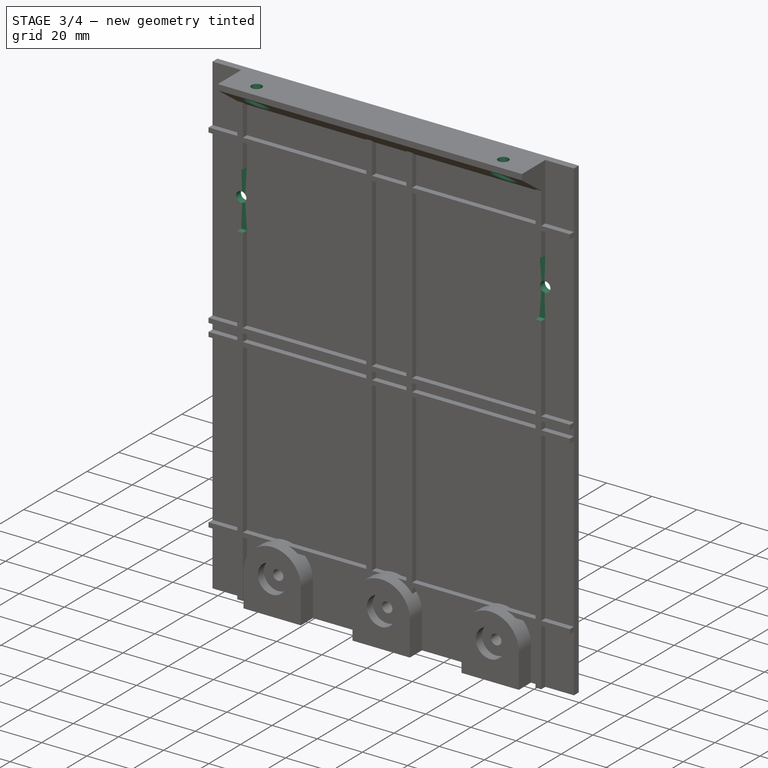
[diagram: stage 3 of 4 — iso view after this stage's code; geometry added in this stage tinted green]
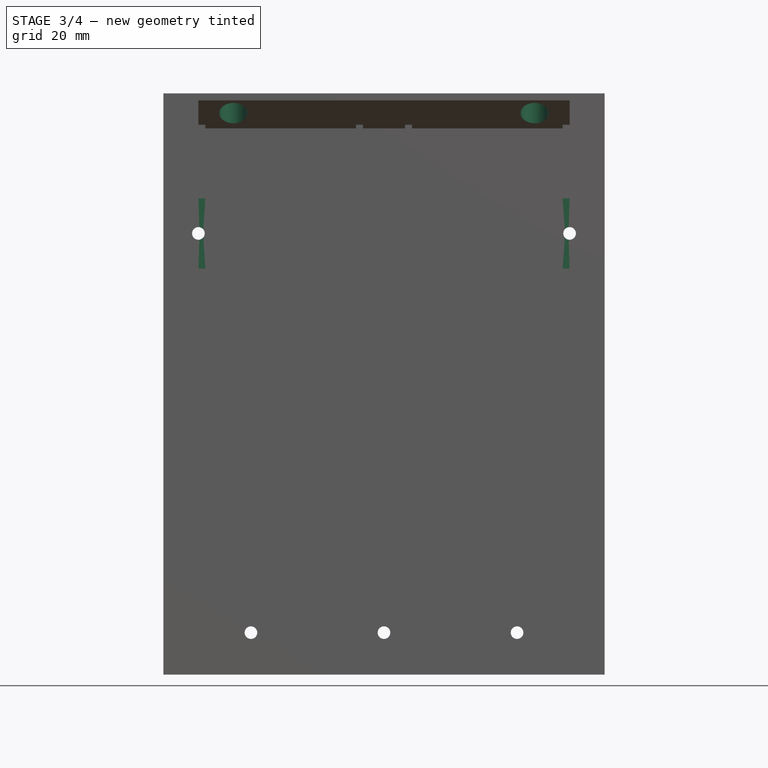
[diagram: stage 3 of 4 — front view after this stage's code; geometry added in this stage tinted green]
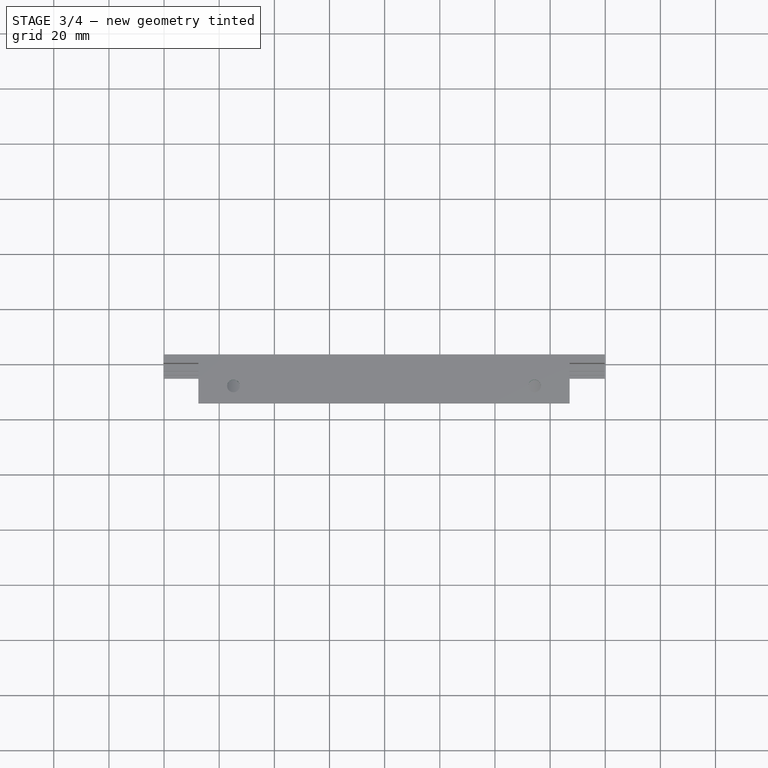
[diagram: stage 3 of 4 — top view after this stage's code; geometry added in this stage tinted green]
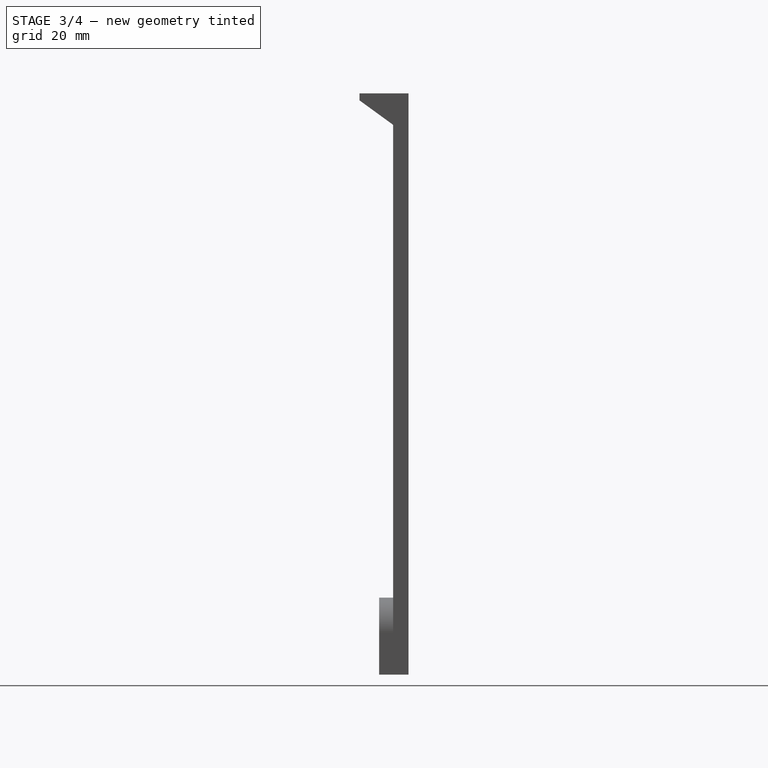
[diagram: stage 3 of 4 — right view after this stage's code; geometry added in this stage tinted green]
FEATURE [Sketcher::SketchObject] Sketch012
  ExternalGeometry = -> [Pad003]
  MapMode = 5
  Placement = pos=(0,-3.048,0) rot=(1,0,0;1.5708rad)
  Support = -> [Pad003]
  sketch-geometry (12):
    g0: LineSegment [constr] StartX=-80.246 StartY=106.834 StartZ=0 EndX=-80.246 EndY=68.7337 EndZ=0
    g1: LineSegment [constr] StartX=-80.246 StartY=68.7337 StartZ=0 EndX=79.774 EndY=68.7337 EndZ=0
    g2: LineSegment [constr] StartX=-80.246 StartY=43.3337 StartZ=0 EndX=79.774 EndY=43.3337 EndZ=0
    g3: LineSegment [constr] StartX=-80.246 StartY=68.7337 StartZ=0 EndX=-80.246 EndY=43.3337 EndZ=0
    g4: LineSegment StartX=-80.246 StartY=68.7337 StartZ=0 EndX=-54.846 EndY=68.7337 EndZ=0
    g5: LineSegment StartX=-54.846 StartY=68.7337 StartZ=0 EndX=-54.846 EndY=43.3337 EndZ=0
    g6: LineSegment StartX=-54.846 StartY=43.3337 StartZ=0 EndX=-80.246 EndY=43.3337 EndZ=0
    g7: LineSegment StartX=-80.246 StartY=43.3337 StartZ=0 EndX=-80.246 EndY=68.7337 EndZ=0
    g8: LineSegment StartX=79.774 StartY=68.7337 StartZ=0 EndX=54.374 EndY=68.7337 EndZ=0
    g9: LineSegment StartX=54.374 StartY=68.7337 StartZ=0 EndX=54.374 EndY=43.3337 EndZ=0
    g10: LineSegment StartX=54.374 StartY=43.3337 StartZ=0 EndX=79.774 EndY=43.3337 EndZ=0
    g11: LineSegment StartX=79.774 StartY=43.3337 StartZ=0 EndX=79.774 EndY=68.7337 EndZ=0
  constraints (35):
    c: Coincident(g0,g-3)
    c: PointOnObject(g0,g-5)
    c: Coincident(g1,g0)
    c: PointOnObject(g1,g-6)
    c: Horizontal(g1)
    c: PointOnObject(g2,g-5)
    c: PointOnObject(g2,g-6)
    c: Horizontal(g2)
    c: Coincident(g3,g0)
    c: Coincident(g3,g2)
    c: Distance(g3) = 25.4
    c: Distance(g0) = 38.1
    c: Coincident(g4,g5)
    c: Coincident(g5,g6)
    c: Coincident(g6,g7)
    c: Coincident(g7,g4)
    c: Horizontal(g4)
    c: Horizontal(g6)
    c: Vertical(g5)
    c: Vertical(g7)
    c: Coincident(g4,g0)
    c: PointOnObject(g5,g2)
    c: Equal(g5,g4)
    c: Coincident(g8,g9)
    c: Coincident(g9,g10)
    c: Coincident(g10,g11)
    c: Coincident(g11,g8)
    c: Horizontal(g8)
    c: Horizontal(g10)
    c: Vertical(g9)
    c: Vertical(g11)
    c: Coincident(g8,g1)
    c: Equal(g9,g8)
    c: Equal(g8,g5)
    c: Equal(g5,g4)
FEATURE [PartDesign::Pocket] Pocket002
  BaseFeature = -> Pad003
  Length = 2.54
  Length2 = 100
  Placement = pos=(0,0,0) rot=(1,0,0;1.5708rad)
  Profile = -> Sketch012
  Reversed = true
  Type = 0
FEATURE [Sketcher::SketchObject] Sketch013
  ExternalGeometry = -> [Pocket002]
  MapMode = 5
  Placement = pos=(0,-3.048,0) rot=(1,0,0;1.5708rad)
  Support = -> [Pocket002]
  sketch-geometry (6):
    g0: LineSegment [constr] StartX=-80.246 StartY=68.7337 StartZ=0 EndX=-54.846 EndY=43.3337 EndZ=0
    g1: LineSegment [constr] StartX=-80.246 StartY=43.3337 StartZ=0 EndX=-54.846 EndY=68.7337 EndZ=0
    g2: LineSegment [constr] StartX=54.374 StartY=68.7337 StartZ=0 EndX=79.774 EndY=43.3337 EndZ=0
    g3: LineSegment [constr] StartX=54.374 StartY=43.3337 StartZ=0 EndX=79.774 EndY=68.7337 EndZ=0
    g4: Circle CenterX=-67.546 CenterY=56.0337 CenterZ=0 NormalX=0 NormalY=0 NormalZ=1 AngleXU=0 Radius=2.286
    g5: Circle CenterX=67.074 CenterY=56.0337 CenterZ=0 NormalX=0 NormalY=0 NormalZ=1 AngleXU=0 Radius=2.286
  constraints (14):
    c: Coincident(g0,g-4)
    c: Coincident(g0,g-3)
    c: Coincident(g1,g-4)
    c: Coincident(g1,g-3)
    c: Coincident(g2,g-5)
    c: Coincident(g2,g-6)
    c: Coincident(g3,g-5)
    c: Coincident(g3,g-6)
    c: Equal(g4,g5)
    c: PointOnObject(g4,g1)
    c: PointOnObject(g4,g0)
    c: PointOnObject(g5,g2)
    c: PointOnObject(g5,g3)
    c: Diameter(g4) = 4.572
FEATURE [PartDesign::Pocket] Pocket003
  BaseFeature = -> Pocket002
  Length = 3.048
  Length2 = 100
  Placement = pos=(0,0,0) rot=(1,0,0;1.5708rad)
  Profile = -> Sketch013
  Type = 0
FEATURE [Sketcher::SketchObject] Sketch014
  ExternalGeometry = -> [Pocket003]
  MapMode = 5
  Placement = pos=(-2.35e-14,3.55e-14,106.834) rot=(0,0,1;3.14159rad)
  Support = -> [Pocket003]
  sketch-geometry (6):
    g0: LineSegment [constr] StartX=-67.074 StartY=11.43 StartZ=0 EndX=-54.374 EndY=11.43 EndZ=0
    g1: LineSegment [constr] StartX=-54.374 StartY=11.43 StartZ=0 EndX=54.846 EndY=11.43 EndZ=0
    g2: LineSegment [constr] StartX=54.846 StartY=11.43 StartZ=0 EndX=67.546 EndY=11.43 EndZ=0
    g3: LineSegment [constr] StartX=-54.374 StartY=11.43 StartZ=0 EndX=-54.374 EndY=0 EndZ=0
    g4: Circle CenterX=-54.374 CenterY=11.43 CenterZ=0 NormalX=0 NormalY=0 NormalZ=1 AngleXU=0 Radius=2.286
    g5: Circle CenterX=54.846 CenterY=11.43 CenterZ=0 NormalX=0 NormalY=0 NormalZ=1 AngleXU=0 Radius=2.286
  constraints (17):
    c: PointOnObject(g0,g-3)
    c: Horizontal(g0)
    c: Coincident(g1,g0)
    c: Horizontal(g1)
    c: Coincident(g2,g1)
    c: PointOnObject(g2,g-4)
    c: Horizontal(g2)
    c: Coincident(g3,g0)
    c: PointOnObject(g3,g-5)
    c: Vertical(g3)
    c: Equal(g0,g2)
    c: Distance(g3) = 11.43
    c: Distance(g0) = 12.7
    c: Coincident(g4,g0)
    c: Coincident(g5,g1)
    c: Equal(g5,g4)
    c: Diameter(g4) = 4.572
FEATURE [PartDesign::Pocket] Pocket004
  BaseFeature = -> Pocket003
  Length = 12.7
  Length2 = 100
  Placement = pos=(0,0,0) rot=(1,0,0;1.5708rad)
  Profile = -> Sketch014
  Type = 0
FEATURE [Sketcher::SketchObject] Sketch015
  ExternalGeometry = -> [Pocket004]
  MapMode = 5
  Placement = pos=(-2.07e-14,3.13e-14,94.1337) rot=(1,0,0;3.14159rad)
  Support = -> [Pocket004]
  sketch-geometry (2):
    g0: Circle CenterX=-54.846 CenterY=11.43 CenterZ=0 NormalX=0 NormalY=0 NormalZ=1 AngleXU=0 Radius=5.08
    g1: Circle CenterX=54.374 CenterY=11.43 CenterZ=0 NormalX=0 NormalY=0 NormalZ=1 AngleXU=0 Radius=5.08
  constraints (4):
    c: Coincident(g0,g-4)
    c: Coincident(g1,g-3)
    c: Equal(g1,g0)
    c: Diameter(g0) = 10.16
FEATURE [PartDesign::Pocket] Pocket005
  BaseFeature = -> Pocket004
  Length = 9.398
  Length2 = 100
  Placement = pos=(0,0,0) rot=(1,0,0;1.5708rad)
  Profile = -> Sketch015
  Type = 0
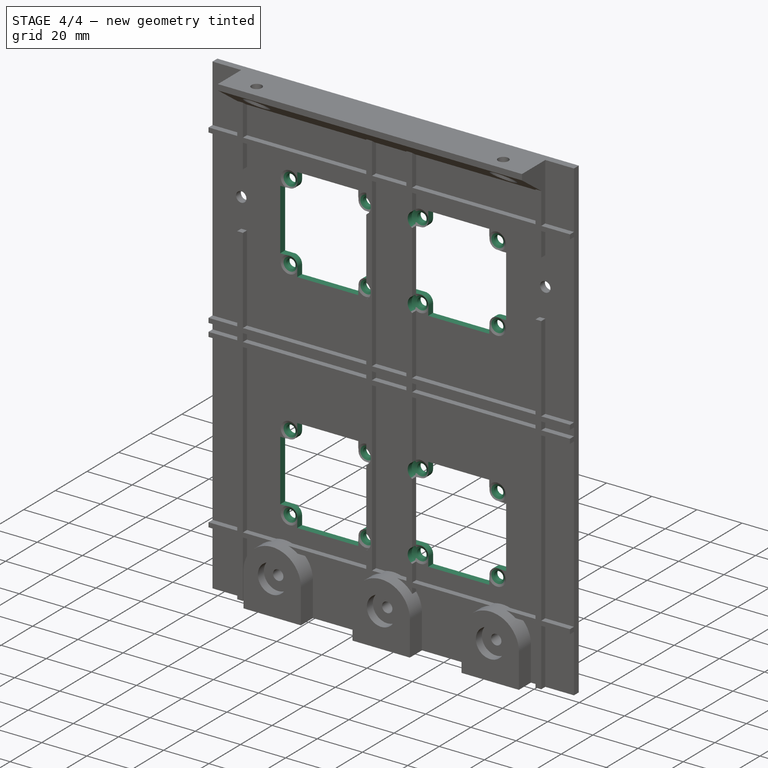
[diagram: stage 4 of 4 — iso view after this stage's code; geometry added in this stage tinted green]
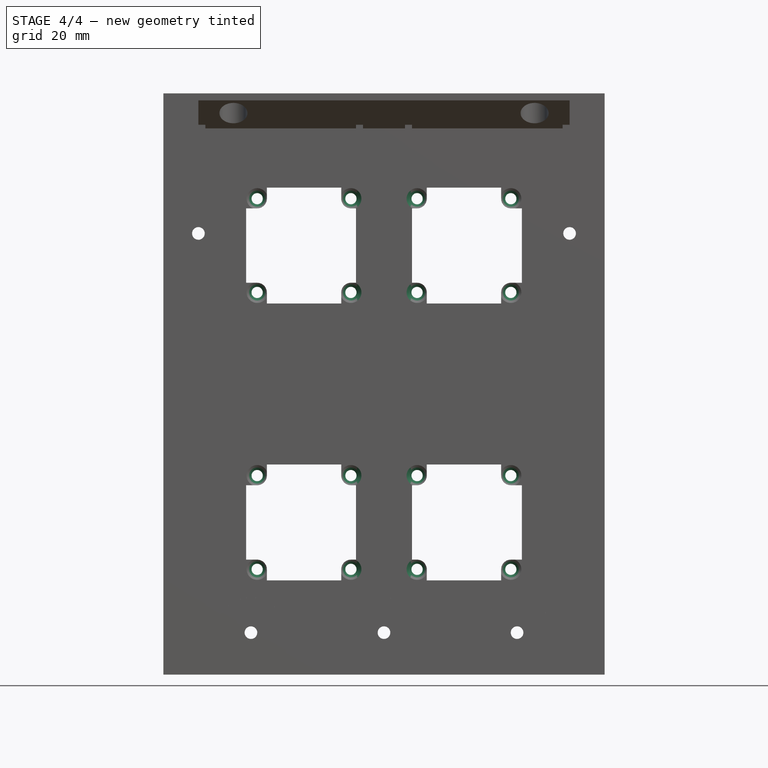
[diagram: stage 4 of 4 — front view after this stage's code; geometry added in this stage tinted green]
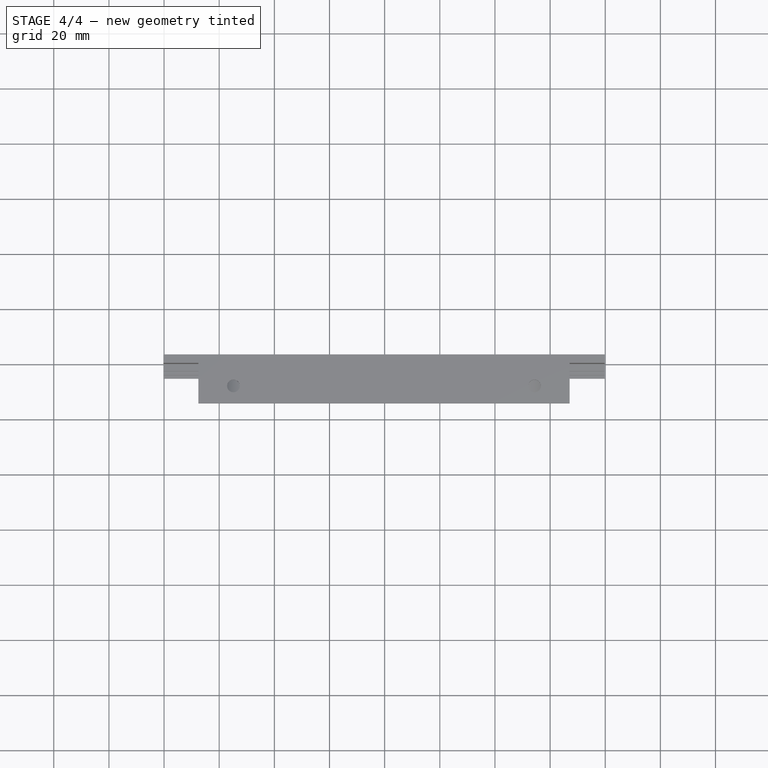
[diagram: stage 4 of 4 — top view after this stage's code; geometry added in this stage tinted green]
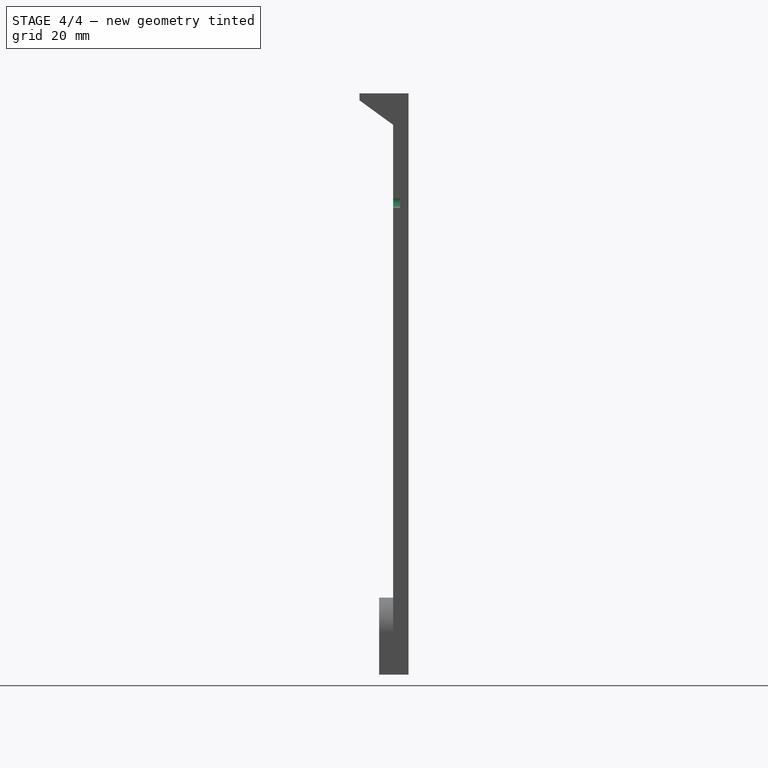
[diagram: stage 4 of 4 — right view after this stage's code; geometry added in this stage tinted green]
FEATURE [Sketcher::SketchObject] Sketch016
  ExternalGeometry = -> [Pocket005]
  MapMode = 5
  Placement = pos=(0,-3.048,0) rot=(1,0,0;1.5708rad)
  Support = -> [Pocket005]
  sketch-geometry (193):
    g0: LineSegment [constr] StartX=-50.236 StartY=72.6336 StartZ=0 EndX=49.7641 EndY=72.6336 EndZ=0
    g1: LineSegment [constr] StartX=49.7641 StartY=72.6336 StartZ=0 EndX=49.7641 EndY=30.6337 EndZ=0
    g2: LineSegment [constr] StartX=49.7641 StartY=30.6337 StartZ=0 EndX=-50.236 EndY=30.6337 EndZ=0
    g3: LineSegment [constr] StartX=-50.236 StartY=30.6337 StartZ=0 EndX=-50.236 EndY=72.6336 EndZ=0
    g4: LineSegment [constr] StartX=-50.236 StartY=30.6337 StartZ=0 EndX=-80.246 EndY=30.6337 EndZ=0
    g5: LineSegment [constr] StartX=49.7641 StartY=30.6337 StartZ=0 EndX=79.774 EndY=30.6337 EndZ=0
    g6: LineSegment [constr] StartX=-50.236 StartY=30.6337 StartZ=0 EndX=-50.236 EndY=5.23366 EndZ=0
    g7: LineSegment [constr] StartX=-50.236 StartY=72.6336 StartZ=0 EndX=-8.23608 EndY=72.6336 EndZ=0
    g8: LineSegment [constr] StartX=-8.23608 StartY=72.6336 StartZ=0 EndX=-8.23608 EndY=30.6337 EndZ=0
    g9: LineSegment [constr] StartX=-8.23608 StartY=30.6337 StartZ=0 EndX=-50.236 EndY=30.6337 EndZ=0
    g10: LineSegment [constr] StartX=-50.236 StartY=30.6337 StartZ=0 EndX=-50.236 EndY=72.6336 EndZ=0
    g11: LineSegment [constr] StartX=-46.236 StartY=68.6336 StartZ=0 EndX=-12.2361 EndY=68.6336 EndZ=0
    g12: LineSegment [constr] StartX=-12.2361 StartY=68.6336 StartZ=0 EndX=-12.2361 EndY=34.6337 EndZ=0
    g13: LineSegment [constr] StartX=-12.2361 StartY=34.6337 StartZ=0 EndX=-46.236 EndY=34.6337 EndZ=0
    g14: LineSegment [constr] StartX=-46.236 StartY=34.6337 StartZ=0 EndX=-46.236 EndY=68.6336 EndZ=0
    g15: LineSegment [constr] StartX=-50.236 StartY=72.6336 StartZ=0 EndX=-8.23608 EndY=30.6337 EndZ=0
    g16: LineSegment [constr] StartX=-8.23608 StartY=72.6336 StartZ=0 EndX=-50.236 EndY=30.6337 EndZ=0
    g17: LineSegment [constr] StartX=-50.236 StartY=65.1336 StartZ=0 EndX=-42.736 EndY=65.1336 EndZ=0
    g18: LineSegment [constr] StartX=-42.736 StartY=65.1336 StartZ=0 EndX=-42.736 EndY=72.6336 EndZ=0
    g19: Circle [constr] CenterX=-46.236 CenterY=68.6336 CenterZ=0 NormalX=0 NormalY=0 NormalZ=1 AngleXU=0 Radius=2.032
    g20: Circle [constr] CenterX=-46.236 CenterY=68.6336 CenterZ=0 NormalX=0 NormalY=0 NormalZ=1 AngleXU=0 Radius=3.49999
    g21: LineSegment [constr] StartX=-15.7361 StartY=72.6336 StartZ=0 EndX=-8.23608 EndY=72.6336 EndZ=0
    g22: LineSegment [constr] StartX=-8.23608 StartY=72.6336 StartZ=0 EndX=-8.23608 EndY=65.1336 EndZ=0
    g23: LineSegment [constr] StartX=-8.23608 StartY=65.1336 StartZ=0 EndX=-15.7361 EndY=65.1336 EndZ=0
    g24: LineSegment [constr] StartX=-15.7361 StartY=65.1336 StartZ=0 EndX=-15.7361 EndY=72.6336 EndZ=0
    g25: LineSegment [constr] StartX=-50.236 StartY=38.1336 StartZ=0 EndX=-42.736 EndY=38.1336 EndZ=0
    g26: LineSegment [constr] StartX=-42.736 StartY=38.1336 StartZ=0 EndX=-42.736 EndY=30.6337 EndZ=0
    g27: LineSegment [constr] StartX=-42.736 StartY=30.6337 StartZ=0 EndX=-50.236 EndY=30.6337 EndZ=0
    g28: LineSegment [constr] StartX=-50.236 StartY=30.6337 StartZ=0 EndX=-50.236 EndY=38.1336 EndZ=0
    g29: LineSegment [constr] StartX=-8.23608 StartY=38.1336 StartZ=0 EndX=-15.7361 EndY=38.1336 EndZ=0
    g30: LineSegment [constr] StartX=-15.7361 StartY=38.1336 StartZ=0 EndX=-15.7361 EndY=30.6337 EndZ=0
    g31: LineSegment [constr] StartX=-15.7361 StartY=30.6337 StartZ=0 EndX=-8.23608 EndY=30.6337 EndZ=0
    g32: LineSegment [constr] StartX=-8.23608 StartY=30.6337 StartZ=0 EndX=-8.23608 EndY=38.1336 EndZ=0
    g33: LineSegment [constr] StartX=-42.736 StartY=65.1336 StartZ=0 EndX=-15.7361 EndY=65.1336 EndZ=0
    g34: LineSegment [constr] StartX=-15.7361 StartY=65.1336 StartZ=0 EndX=-15.7361 EndY=38.1336 EndZ=0
    g35: LineSegment [constr] StartX=-15.7361 StartY=38.1336 StartZ=0 EndX=-42.736 EndY=38.1336 EndZ=0
    g36: LineSegment [constr] StartX=-42.736 StartY=38.1336 StartZ=0 EndX=-42.736 EndY=65.1336 EndZ=0
    g37: LineSegment [constr] StartX=49.7641 StartY=72.6336 StartZ=0 EndX=7.76414 EndY=30.6337 EndZ=0
    g38: LineSegment [constr] StartX=15.2641 StartY=65.1336 StartZ=0 EndX=42.2641 EndY=65.1336 EndZ=0
    g39: LineSegment [constr] StartX=42.2641 StartY=65.1336 StartZ=0 EndX=42.2641 EndY=38.1336 EndZ=0
    g40: LineSegment [constr] StartX=42.2641 StartY=38.1336 StartZ=0 EndX=15.2641 EndY=38.1336 EndZ=0
    g41: LineSegment [constr] StartX=15.2641 StartY=38.1336 StartZ=0 EndX=15.2641 EndY=65.1336 EndZ=0
    g42: LineSegment [constr] StartX=49.7641 StartY=30.6337 StartZ=0 EndX=7.76414 EndY=72.6336 EndZ=0
    g43: LineSegment [constr] StartX=42.2641 StartY=72.6336 StartZ=0 EndX=49.7641 EndY=72.6336 EndZ=0
    g44: LineSegment [constr] StartX=49.7641 StartY=72.6336 StartZ=0 EndX=49.7641 EndY=65.1336 EndZ=0
    g45: LineSegment [constr] StartX=49.7641 StartY=65.1336 StartZ=0 EndX=42.2641 EndY=65.1336 EndZ=0
    g46: LineSegment [constr] StartX=42.2641 StartY=65.1336 StartZ=0 EndX=42.2641 EndY=72.6336 EndZ=0
    g47: LineSegment [constr] StartX=15.2641 StartY=72.6336 StartZ=0 EndX=7.76414 EndY=72.6336 EndZ=0
    g48: LineSegment [constr] StartX=7.76414 StartY=72.6336 StartZ=0 EndX=7.76414 EndY=65.1336 EndZ=0
    g49: LineSegment [constr] StartX=7.76414 StartY=65.1336 StartZ=0 EndX=15.2641 EndY=65.1336 EndZ=0
    g50: LineSegment [constr] StartX=15.2641 StartY=65.1336 StartZ=0 EndX=15.2641 EndY=72.6336 EndZ=0
    g51: LineSegment [constr] StartX=7.76414 StartY=30.6337 StartZ=0 EndX=15.2641 EndY=30.6337 EndZ=0
    g52: LineSegment [constr] StartX=15.2641 StartY=30.6337 StartZ=0 EndX=15.2641 EndY=38.1336 EndZ=0
    g53: LineSegment [constr] StartX=15.2641 StartY=38.1336 StartZ=0 EndX=7.76414 EndY=38.1336 EndZ=0
    g54: LineSegment [constr] StartX=7.76414 StartY=38.1336 StartZ=0 EndX=7.76414 EndY=30.6337 EndZ=0
    g55: LineSegment [constr] StartX=42.2641 StartY=38.1336 StartZ=0 EndX=49.7641 EndY=38.1336 EndZ=0
    g56: LineSegment [constr] StartX=49.7641 StartY=38.1336 StartZ=0 EndX=49.7641 EndY=30.6337 EndZ=0
    g57: LineSegment [constr] StartX=49.7641 StartY=30.6337 StartZ=0 EndX=42.2641 EndY=30.6337 EndZ=0
    g58: LineSegment [constr] StartX=42.2641 StartY=30.6337 StartZ=0 EndX=42.2641 EndY=38.1336 EndZ=0
    g59: LineSegment [constr] StartX=11.7641 StartY=68.6336 StartZ=0 EndX=45.7641 EndY=68.6336 EndZ=0
    g60: LineSegment [constr] StartX=45.7641 StartY=68.6336 StartZ=0 EndX=45.7641 EndY=34.6337 EndZ=0
    g61: LineSegment [constr] StartX=45.7641 StartY=34.6337 StartZ=0 EndX=11.7641 EndY=34.6337 EndZ=0
    g62: LineSegment [constr] StartX=11.7641 StartY=34.6337 StartZ=0 EndX=11.7641 EndY=68.6336 EndZ=0
    g63: LineSegment [constr] StartX=-50.236 StartY=-27.7863 StartZ=0 EndX=49.7641 EndY=-27.7863 EndZ=0
    g64: LineSegment [constr] StartX=49.7641 StartY=-27.7863 StartZ=0 EndX=49.7641 EndY=-69.7863 EndZ=0
    g65: LineSegment [constr] StartX=49.7641 StartY=-69.7863 StartZ=0 EndX=-50.236 EndY=-69.7863 EndZ=0
    g66: LineSegment [constr] StartX=-50.236 StartY=-69.7863 StartZ=0 EndX=-50.236 EndY=-27.7863 EndZ=0
    g67: LineSegment [constr] StartX=-50.236 StartY=-27.7863 StartZ=0 EndX=-50.236 EndY=-2.38634 EndZ=0
    g68: LineSegment [constr] StartX=-50.236 StartY=-27.7863 StartZ=0 EndX=-80.246 EndY=-27.7863 EndZ=0
    g69: LineSegment [constr] StartX=-50.236 StartY=-27.7863 StartZ=0 EndX=-8.23608 EndY=-27.7863 EndZ=0
    g70: LineSegment [constr] StartX=-8.23608 StartY=-27.7863 StartZ=0 EndX=-8.23608 EndY=-69.7863 EndZ=0
    g71: LineSegment [constr] StartX=-8.23608 StartY=-69.7863 StartZ=0 EndX=-50.236 EndY=-69.7863 EndZ=0
    g72: LineSegment [constr] StartX=-50.236 StartY=-69.7863 StartZ=0 EndX=-50.236 EndY=-27.7863 EndZ=0
    g73: LineSegment [constr] StartX=49.7641 StartY=-27.7863 StartZ=0 EndX=7.76414 EndY=-27.7863 EndZ=0
    g74: LineSegment [constr] StartX=7.76414 StartY=-27.7863 StartZ=0 EndX=7.76414 EndY=-69.7863 EndZ=0
    g75: LineSegment [constr] StartX=7.76414 StartY=-69.7863 StartZ=0 EndX=49.7641 EndY=-69.7863 EndZ=0
    g76: LineSegment [constr] StartX=49.7641 StartY=-69.7863 StartZ=0 EndX=49.7641 EndY=-27.7863 EndZ=0
    g77: LineSegment [constr] StartX=-50.236 StartY=-69.7863 StartZ=0 EndX=-8.23608 EndY=-27.7863 EndZ=0
    g78: LineSegment [constr] StartX=-50.236 StartY=-27.7863 StartZ=0 EndX=-8.23608 EndY=-69.7863 EndZ=0
    g79: LineSegment [constr] StartX=7.76414 StartY=-69.7863 StartZ=0 EndX=49.7641 EndY=-27.7863 EndZ=0
    g80: LineSegment [constr] StartX=7.76414 StartY=-27.7863 StartZ=0 EndX=49.7641 EndY=-69.7863 EndZ=0
    g81: LineSegment [constr] StartX=-46.236 StartY=-31.7863 StartZ=0 EndX=-12.2361 EndY=-31.7863 EndZ=0
    g82: LineSegment [constr] StartX=-12.2361 StartY=-31.7863 StartZ=0 EndX=-12.2361 EndY=-65.7863 EndZ=0
    g83: LineSegment [constr] StartX=-12.2361 StartY=-65.7863 StartZ=0 EndX=-46.236 EndY=-65.7863 EndZ=0
    g84: LineSegment [constr] StartX=-46.236 StartY=-65.7863 StartZ=0 EndX=-46.236 EndY=-31.7863 EndZ=0
    g85: LineSegment [constr] StartX=11.7641 StartY=-31.7863 StartZ=0 EndX=45.7641 EndY=-31.7863 EndZ=0
    g86: LineSegment [constr] StartX=45.7641 StartY=-31.7863 StartZ=0 EndX=45.7641 EndY=-65.7863 EndZ=0
    g87: LineSegment [constr] StartX=45.7641 StartY=-65.7863 StartZ=0 EndX=11.7641 EndY=-65.7863 EndZ=0
    g88: LineSegment [constr] StartX=11.7641 StartY=-65.7863 StartZ=0 EndX=11.7641 EndY=-31.7863 EndZ=0
    g89: LineSegment [constr] StartX=-42.736 StartY=-35.2863 StartZ=0 EndX=-15.7361 EndY=-35.2863 EndZ=0
    g90: LineSegment [constr] StartX=-15.7361 StartY=-35.2863 StartZ=0 EndX=-15.7361 EndY=-62.2863 EndZ=0
    g91: LineSegment [constr] StartX=-15.7361 StartY=-62.2863 StartZ=0 EndX=-42.736 EndY=-62.2863 EndZ=0
    g92: LineSegment [constr] StartX=-42.736 StartY=-62.2863 StartZ=0 EndX=-42.736 EndY=-35.2863 EndZ=0
    g93: LineSegment [constr] StartX=15.2641 StartY=-35.2863 StartZ=0 EndX=42.2641 EndY=-35.2863 EndZ=0
    g94: LineSegment [constr] StartX=42.2641 StartY=-35.2863 StartZ=0 EndX=42.2641 EndY=-62.2863 EndZ=0
    g95: LineSegment [constr] StartX=42.2641 StartY=-62.2863 StartZ=0 EndX=15.2641 EndY=-62.2863 EndZ=0
    g96: LineSegment [constr] StartX=15.2641 StartY=-62.2863 StartZ=0 EndX=15.2641 EndY=-35.2863 EndZ=0
    g97: LineSegment [constr] StartX=-50.236 StartY=-27.7863 StartZ=0 EndX=-42.736 EndY=-27.7863 EndZ=0
    g98: LineSegment [constr] StartX=-42.736 StartY=-27.7863 StartZ=0 EndX=-42.736 EndY=-35.2863 EndZ=0
    g99: LineSegment [constr] StartX=-42.736 StartY=-35.2863 StartZ=0 EndX=-50.236 EndY=-35.2863 EndZ=0
    g100: LineSegment [constr] StartX=-50.236 StartY=-35.2863 StartZ=0 EndX=-50.236 EndY=-27.7863 EndZ=0
    g101: LineSegment [constr] StartX=-8.23608 StartY=-27.7863 StartZ=0 EndX=-15.7361 EndY=-27.7863 EndZ=0
    g102: LineSegment [constr] StartX=-15.7361 StartY=-27.7863 StartZ=0 EndX=-15.7361 EndY=-35.2863 EndZ=0
    g103: LineSegment [constr] StartX=-15.7361 StartY=-35.2863 StartZ=0 EndX=-8.23608 EndY=-35.2863 EndZ=0
    g104: LineSegment [constr] StartX=-8.23608 StartY=-35.2863 StartZ=0 EndX=-8.23608 EndY=-27.7863 EndZ=0
    g105: LineSegment [constr] StartX=-15.7361 StartY=-62.2863 StartZ=0 EndX=-8.23608 EndY=-62.2863 EndZ=0
    g106: LineSegment [constr] StartX=-8.23608 StartY=-62.2863 StartZ=0 EndX=-8.23608 EndY=-69.7863 EndZ=0
    g107: LineSegment [constr] StartX=-8.23608 StartY=-69.7863 StartZ=0 EndX=-15.7361 EndY=-69.7863 EndZ=0
    g108: LineSegment [constr] StartX=-15.7361 StartY=-69.7863 StartZ=0 EndX=-15.7361 EndY=-62.2863 EndZ=0
    g109: LineSegment [constr] StartX=-50.236 StartY=-69.7863 StartZ=0 EndX=-42.736 EndY=-69.7863 EndZ=0
    g110: LineSegment [constr] StartX=-42.736 StartY=-69.7863 StartZ=0 EndX=-42.736 EndY=-62.2863 EndZ=0
    g111: LineSegment [constr] StartX=-42.736 StartY=-62.2863 StartZ=0 EndX=-50.236 EndY=-62.2863 EndZ=0
    g112: LineSegment [constr] StartX=-50.236 StartY=-62.2863 StartZ=0 EndX=-50.236 EndY=-69.7863 EndZ=0
    g113: LineSegment [constr] StartX=7.76414 StartY=-27.7863 StartZ=0 EndX=15.2641 EndY=-27.7863 EndZ=0
    g114: LineSegment [constr] StartX=15.2641 StartY=-27.7863 StartZ=0 EndX=15.2641 EndY=-35.2863 EndZ=0
    g115: LineSegment [constr] StartX=15.2641 StartY=-35.2863 StartZ=0 EndX=7.76414 EndY=-35.2863 EndZ=0
    g116: LineSegment [constr] StartX=7.76414 StartY=-35.2863 StartZ=0 EndX=7.76414 EndY=-27.7863 EndZ=0
    g117: LineSegment [constr] StartX=49.7641 StartY=-27.7863 StartZ=0 EndX=42.2641 EndY=-27.7863 EndZ=0
    g118: LineSegment [constr] StartX=42.2641 StartY=-27.7863 StartZ=0 EndX=42.2641 EndY=-35.2863 EndZ=0
    g119: LineSegment [constr] StartX=42.2641 StartY=-35.2863 StartZ=0 EndX=49.7641 EndY=-35.2863 EndZ=0
    g120: LineSegment [constr] StartX=49.7641 StartY=-35.2863 StartZ=0 EndX=49.7641 EndY=-27.7863 EndZ=0
    g121: LineSegment [constr] StartX=42.2641 StartY=-62.2863 StartZ=0 EndX=49.7641 EndY=-62.2863 EndZ=0
    g122: LineSegment [constr] StartX=49.7641 StartY=-62.2863 StartZ=0 EndX=49.7641 EndY=-69.7863 EndZ=0
    g123: LineSegment [constr] StartX=49.7641 StartY=-69.7863 StartZ=0 EndX=42.2641 EndY=-69.7863 EndZ=0
    g124: LineSegment [constr] StartX=42.2641 StartY=-69.7863 StartZ=0 EndX=42.2641 EndY=-62.2863 EndZ=0
    g125: LineSegment [constr] StartX=7.76414 StartY=-69.7863 StartZ=0 EndX=15.2641 EndY=-69.7863 EndZ=0
    g126: LineSegment [constr] StartX=15.2641 StartY=-69.7863 StartZ=0 EndX=15.2641 EndY=-62.2863 EndZ=0
    g127: LineSegment [constr] StartX=15.2641 StartY=-62.2863 StartZ=0 EndX=7.76414 EndY=-62.2863 EndZ=0
    g128: LineSegment [constr] StartX=7.76414 StartY=-62.2863 StartZ=0 EndX=7.76414 EndY=-69.7863 EndZ=0
    g129: ArcOfCircle CenterX=-46.236 CenterY=68.6336 CenterZ=0 NormalX=0 NormalY=0 NormalZ=1 AngleXU=0 Radius=3.49999 StartAngle=4.71239 EndAngle=6.28319
    g130: ArcOfCircle CenterX=-12.2361 CenterY=68.6336 CenterZ=0 NormalX=0 NormalY=0 NormalZ=1 AngleXU=0 Radius=3.49999 StartAngle=3.14159 EndAngle=4.71239
    g131: ArcOfCircle CenterX=-12.2361 CenterY=34.6337 CenterZ=0 NormalX=0 NormalY=0 NormalZ=1 AngleXU=0 Radius=3.49999 StartAngle=1.5708 EndAngle=3.14159
    g132: ArcOfCircle CenterX=-46.236 CenterY=34.6337 CenterZ=0 NormalX=0 NormalY=0 NormalZ=1 AngleXU=0 Radius=3.49999 StartAngle=6.28318 EndAngle=7.85398
    g133: LineSegment StartX=-50.236 StartY=38.1336 StartZ=0 EndX=-46.236 EndY=38.1336 EndZ=0
    g134: LineSegment StartX=-42.736 StartY=34.6337 StartZ=0 EndX=-42.736 EndY=30.6337 EndZ=0
    g135: LineSegment StartX=-50.236 StartY=38.1336 StartZ=0 EndX=-50.236 EndY=65.1336 EndZ=0
    g136: LineSegment StartX=-50.236 StartY=65.1336 StartZ=0 EndX=-46.236 EndY=65.1336 EndZ=0
    g137: LineSegment StartX=-42.736 StartY=68.6336 StartZ=0 EndX=-42.736 EndY=72.6336 EndZ=0
    g138: LineSegment StartX=-42.736 StartY=72.6336 StartZ=0 EndX=-15.7361 EndY=72.6336 EndZ=0
    g139: LineSegment StartX=-15.7361 StartY=72.6336 StartZ=0 EndX=-15.7361 EndY=68.6336 EndZ=0
    g140: LineSegment StartX=-12.2361 StartY=65.1336 StartZ=0 EndX=-8.23608 EndY=65.1336 EndZ=0
    g141: LineSegment StartX=-8.23608 StartY=65.1336 StartZ=0 EndX=-8.23608 EndY=38.1336 EndZ=0
    g142: LineSegment StartX=-8.23608 StartY=38.1336 StartZ=0 EndX=-12.2361 EndY=38.1336 EndZ=0
    g143: LineSegment StartX=-15.7361 StartY=34.6337 StartZ=0 EndX=-15.7361 EndY=30.6337 EndZ=0
    g144: LineSegment StartX=-42.736 StartY=30.6337 StartZ=0 EndX=-15.7361 EndY=30.6337 EndZ=0
    g145: ArcOfCircle CenterX=11.7641 CenterY=68.6336 CenterZ=0 NormalX=0 NormalY=0 NormalZ=1 AngleXU=0 Radius=3.49999 StartAngle=4.71239 EndAngle=6.28319
    g146: ArcOfCircle CenterX=11.7641 CenterY=34.6337 CenterZ=0 NormalX=0 NormalY=0 NormalZ=1 AngleXU=0 Radius=3.49999 StartAngle=9e-16 EndAngle=1.5708
    g147: ArcOfCircle CenterX=45.7641 CenterY=34.6337 CenterZ=0 NormalX=0 NormalY=0 NormalZ=1 AngleXU=0 Radius=3.49999 StartAngle=1.5708 EndAngle=3.14159
    g148: ArcOfCircle CenterX=45.7641 CenterY=68.6336 CenterZ=0 NormalX=0 NormalY=0 NormalZ=1 AngleXU=0 Radius=3.49999 StartAngle=3.14159 EndAngle=4.71239
    g149: LineSegment StartX=15.2641 StartY=72.6336 StartZ=0 EndX=42.2641 EndY=72.6336 EndZ=0
    g150: LineSegment StartX=15.2641 StartY=72.6336 StartZ=0 EndX=15.2641 EndY=68.6336 EndZ=0
    g151: LineSegment StartX=11.7641 StartY=65.1336 StartZ=0 EndX=7.76414 EndY=65.1336 EndZ=0
    g152: LineSegment StartX=7.76414 StartY=65.1336 StartZ=0 EndX=7.76414 EndY=38.1336 EndZ=0
    g153: LineSegment StartX=7.76414 StartY=38.1336 StartZ=0 EndX=11.7641 EndY=38.1336 EndZ=0
    g154: LineSegment StartX=15.2641 StartY=34.6337 StartZ=0 EndX=15.2641 EndY=30.6337 EndZ=0
    g155: LineSegment StartX=15.2641 StartY=30.6337 StartZ=0 EndX=42.2641 EndY=30.6337 EndZ=0
    g156: LineSegment StartX=42.2641 StartY=30.6337 StartZ=0 EndX=42.2641 EndY=34.6337 EndZ=0
    g157: LineSegment StartX=45.7641 StartY=38.1336 StartZ=0 EndX=49.7641 EndY=38.1336 EndZ=0
    g158: LineSegment StartX=49.7641 StartY=38.1336 StartZ=0 EndX=49.7641 EndY=65.1336 EndZ=0
    g159: LineSegment StartX=45.7641 StartY=65.1336 StartZ=0 EndX=49.7641 EndY=65.1336 EndZ=0
    g160: LineSegment StartX=42.2641 StartY=72.6336 StartZ=0 EndX=42.2641 EndY=68.6336 EndZ=0
    g161: ArcOfCircle CenterX=-46.236 CenterY=-31.7863 CenterZ=0 NormalX=0 NormalY=0 NormalZ=1 AngleXU=0 Radius=3.49999 StartAngle=4.71239 EndAngle=6.28319
    g162: ArcOfCircle CenterX=-12.2361 CenterY=-31.7863 CenterZ=0 NormalX=0 NormalY=0 NormalZ=1 AngleXU=0 Radius=3.49999 StartAngle=3.14159 EndAngle=4.71239
    g163: ArcOfCircle CenterX=-12.2361 CenterY=-65.7863 CenterZ=0 NormalX=0 NormalY=0 NormalZ=1 AngleXU=0 Radius=3.49999 StartAngle=1.5708 EndAngle=3.14159
    g164: ArcOfCircle CenterX=-46.236 CenterY=-65.7863 CenterZ=0 NormalX=0 NormalY=0 NormalZ=1 AngleXU=0 Radius=3.49999 StartAngle=1.3e-15 EndAngle=1.5708
    g165: ArcOfCircle CenterX=11.7641 CenterY=-65.7863 CenterZ=0 NormalX=0 NormalY=0 NormalZ=1 AngleXU=0 Radius=3.49999 StartAngle=2.9e-15 EndAngle=1.57079
    g166: ArcOfCircle CenterX=45.7641 CenterY=-65.7863 CenterZ=0 NormalX=0 NormalY=0 NormalZ=1 AngleXU=0 Radius=3.49999 StartAngle=1.5708 EndAngle=3.14159
    g167: ArcOfCircle CenterX=45.7641 CenterY=-31.7863 CenterZ=0 NormalX=0 NormalY=0 NormalZ=1 AngleXU=0 Radius=3.49999 StartAngle=3.14159 EndAngle=4.71239
    g168: ArcOfCircle CenterX=11.7641 CenterY=-31.7863 CenterZ=0 NormalX=0 NormalY=0 NormalZ=1 AngleXU=0 Radius=3.49999 StartAngle=4.7124 EndAngle=6.28319
    g169: LineSegment StartX=-42.736 StartY=-27.7863 StartZ=0 EndX=-42.736 EndY=-31.7863 EndZ=0
    g170: LineSegment StartX=-46.236 StartY=-35.2863 StartZ=0 EndX=-50.236 EndY=-35.2863 EndZ=0
    g171: LineSegment StartX=-42.736 StartY=-27.7863 StartZ=0 EndX=-15.7361 EndY=-27.7863 EndZ=0
    g172: LineSegment StartX=-15.7361 StartY=-27.7863 StartZ=0 EndX=-15.7361 EndY=-31.7863 EndZ=0
    g173: LineSegment StartX=-12.2361 StartY=-35.2863 StartZ=0 EndX=-8.23608 EndY=-35.2863 EndZ=0
    g174: LineSegment StartX=-8.23608 StartY=-35.2863 StartZ=0 EndX=-8.23608 EndY=-62.2863 EndZ=0
    g175: LineSegment StartX=-8.23608 StartY=-62.2863 StartZ=0 EndX=-12.2361 EndY=-62.2863 EndZ=0
    g176: LineSegment StartX=-15.7361 StartY=-65.7863 StartZ=0 EndX=-15.7361 EndY=-69.7863 EndZ=0
    g177: LineSegment StartX=-15.7361 StartY=-69.7863 StartZ=0 EndX=-42.736 EndY=-69.7863 EndZ=0
    g178: LineSegment StartX=-42.736 StartY=-65.7863 StartZ=0 EndX=-42.736 EndY=-69.7863 EndZ=0
    g179: LineSegment StartX=-46.236 StartY=-62.2863 StartZ=0 EndX=-50.236 EndY=-62.2863 EndZ=0
    g180: LineSegment StartX=-50.236 StartY=-62.2863 StartZ=0 EndX=-50.236 EndY=-35.2863 EndZ=0
    g181: LineSegment StartX=15.2641 StartY=-31.7863 StartZ=0 EndX=15.2641 EndY=-27.7863 EndZ=0
    g182: LineSegment StartX=15.2641 StartY=-27.7863 StartZ=0 EndX=42.2641 EndY=-27.7863 EndZ=0
    g183: LineSegment StartX=42.2641 StartY=-27.7863 StartZ=0 EndX=42.2641 EndY=-31.7863 EndZ=0
    g184: LineSegment StartX=45.7641 StartY=-35.2863 StartZ=0 EndX=49.7641 EndY=-35.2863 EndZ=0
    g185: LineSegment StartX=49.7641 StartY=-35.2863 StartZ=0 EndX=49.7641 EndY=-62.2863 EndZ=0
    g186: LineSegment StartX=49.7641 StartY=-62.2863 StartZ=0 EndX=45.7641 EndY=-62.2863 EndZ=0
    g187: LineSegment StartX=42.2641 StartY=-65.7863 StartZ=0 EndX=42.2641 EndY=-69.7863 EndZ=0
    g188: LineSegment StartX=15.2641 StartY=-69.7863 StartZ=0 EndX=42.2641 EndY=-69.7863 EndZ=0
    g189: LineSegment StartX=15.2641 StartY=-65.7863 StartZ=0 EndX=15.2641 EndY=-69.7863 EndZ=0
    g190: LineSegment StartX=11.7641 StartY=-62.2863 StartZ=0 EndX=7.76414 EndY=-62.2863 EndZ=0
    g191: LineSegment StartX=7.76414 StartY=-35.2863 StartZ=0 EndX=7.76414 EndY=-62.2863 EndZ=0
    g192: LineSegment StartX=7.76414 StartY=-35.2863 StartZ=0 EndX=11.7642 EndY=-35.2863 EndZ=0
  constraints (513):
    c: Coincident(g0,g1)
    c: Coincident(g1,g2)
    c: Coincident(g2,g3)
    c: Coincident(g3,g0)
    c: Horizontal(g0)
    c: Horizontal(g2)
    c: Vertical(g1)
    c: Vertical(g3)
    c: Distance(g2) = 100
    c: Coincident(g4,g2)
    c: PointOnObject(g4,g-3)
    c: Coincident(g5,g1)
    c: PointOnObject(g5,g-4)
    c: Horizontal(g5)
    c: Horizontal(g4)
    c: Equal(g4,g5)
    c: Coincident(g6,g2)
    c: PointOnObject(g6,g-7)
    c: Vertical(g6)
    c: Distance(g6) = 25.4
    c: Distance(g3) = 41.9999
    c: Coincident(g7,g8)
    c: Coincident(g8,g9)
    c: Coincident(g9,g10)
    c: Coincident(g10,g7)
    c: Horizontal(g7)
    c: Horizontal(g9)
    c: Vertical(g8)
    c: Vertical(g10)
    c: Coincident(g7,g0)
    c: Equal(g9,g8)
    c: PointOnObject(g8,g2)
    c: Coincident(g11,g12)
    c: Coincident(g12,g13)
    c: Coincident(g13,g14)
    c: Coincident(g14,g11)
    c: Horizontal(g13)
    c: Vertical(g12)
    c: Equal(g12,g11)
    c: Equal(g11,g14)
    c: Equal(g14,g13)
    c: Distance(g11) = 33.9999
    c: Coincident(g15,g0)
    c: Coincident(g15,g8)
    c: Coincident(g16,g7)
    c: Coincident(g16,g2)
    c: PointOnObject(g11,g15)
    c: PointOnObject(g13,g16)
    c: PointOnObject(g17,g3)
    c: PointOnObject(g17,g15)
    c: Horizontal(g17)
    c: Coincident(g18,g17)
    c: Vertical(g18)
    c: Equal(g18,g17)
    c: Coincident(g19,g11)
    c: Diameter(g19) = 4.064
    c: Coincident(g20,g11)
    c: Tangent(g17,g20)
    c: Coincident(g21,g22)
    c: Coincident(g22,g23)
    c: Coincident(g23,g24)
    c: Coincident(g24,g21)
    c: Horizontal(g21)
    c: Horizontal(g23)
    c: Vertical(g22)
    c: Vertical(g24)
    c: PointOnObject(g21,g0)
    c: PointOnObject(g22,g8)
    c: Equal(g24,g23)
    c: Equal(g23,g18)
    c: Coincident(g25,g26)
    c: Coincident(g26,g27)
    c: Coincident(g27,g28)
    c: Coincident(g28,g25)
    c: Horizontal(g25)
    c: Horizontal(g27)
    c: Vertical(g26)
    c: Vertical(g28)
    c: PointOnObject(g25,g3)
    c: PointOnObject(g26,g2)
    c: Coincident(g29,g30)
    c: Coincident(g30,g31)
    c: Coincident(g31,g32)
    c: Coincident(g32,g29)
    c: Horizontal(g29)
    c: Horizontal(g31)
    c: Vertical(g30)
    c: Vertical(g32)
    c: PointOnObject(g29,g8)
    c: PointOnObject(g30,g2)
    c: Equal(g29,g30)
    c: Equal(g30,g26)
    c: Equal(g26,g25)
    c: Equal(g25,g18)
    c: Coincident(g33,g34)
    c: Coincident(g34,g35)
    c: Coincident(g35,g36)
    c: Coincident(g36,g33)
    c: Horizontal(g35)
    c: Vertical(g36)
    c: Equal(g34,g33)
    c: Equal(g33,g36)
    c: Equal(g36,g35)
    c: PointOnObject(g33,g16)
    c: Distance(g33) = 26.9999
    c: Coincident(g17,g33)
    c: Coincident(g37,g0)
    c: PointOnObject(g37,g2)
    c: Coincident(g38,g39)
    c: Coincident(g39,g40)
    c: Coincident(g40,g41)
    c: Coincident(g41,g38)
    c: Horizontal(g38)
    c: Vertical(g39)
    c: PointOnObject(g38,g37)
    c: PointOnObject(g40,g37)
    c: Equal(g38,g41)
    c: Equal(g41,g40)
    c: Equal(g40,g39)
    c: Equal(g39,g34)
    c: Coincident(g42,g1)
    c: PointOnObject(g42,g0)
    c: PointOnObject(g38,g42)
    c: PointOnObject(g39,g42)
    c: Coincident(g43,g44)
    c: Coincident(g44,g45)
    c: Coincident(g45,g46)
    c: Coincident(g46,g43)
    c: Horizontal(g43)
    c: Horizontal(g45)
    c: Vertical(g44)
    c: Vertical(g46)
    c: PointOnObject(g43,g0)
    c: PointOnObject(g44,g1)
    c: Coincident(g45,g38)
    c: Coincident(g47,g48)
    c: Coincident(g48,g49)
    c: Coincident(g49,g50)
    c: Coincident(g50,g47)
    c: Horizontal(g47)
    c: Horizontal(g49)
    c: Vertical(g48)
    c: Vertical(g50)
    c: Coincident(g49,g38)
    c: Coincident(g47,g42)
    c: Coincident(g51,g52)
    c: Coincident(g52,g53)
    c: Coincident(g53,g54)
    c: Coincident(g54,g51)
    c: Horizontal(g51)
    c: Horizontal(g53)
    c: Vertical(g52)
    c: Vertical(g54)
    c: Coincident(g51,g37)
    c: Coincident(g52,g40)
    c: Coincident(g55,g56)
    c: Coincident(g56,g57)
    c: Coincident(g57,g58)
    c: Coincident(g58,g55)
    c: Horizontal(g55)
    c: Horizontal(g57)
    c: Vertical(g56)
    c: Vertical(g58)
    c: Coincident(g55,g39)
    c: Coincident(g56,g1)
    c: Coincident(g59,g60)
    c: Coincident(g60,g61)
    c: Coincident(g61,g62)
    c: Coincident(g62,g59)
    c: PointOnObject(g59,g42)
    c: PointOnObject(g60,g42)
    c: PointOnObject(g61,g37)
    c: Equal(g62,g59)
    c: Equal(g59,g60)
    c: Equal(g60,g61)
    c: Equal(g61,g12)
    c: Coincident(g63,g64)
    c: Coincident(g64,g65)
    c: Coincident(g65,g66)
    c: Coincident(g66,g63)
    c: Horizontal(g63)
    c: Horizontal(g65)
    c: Vertical(g64)
    c: Vertical(g66)
    c: Coincident(g67,g63)
    c: PointOnObject(g67,g-8)
    c: Vertical(g67)
    c: Coincident(g68,g63)
    c: PointOnObject(g68,g-9)
    c: Horizontal(g68)
    c: Equal(g68,g4)
    c: Equal(g67,g6)
    c: Equal(g3,g66)
    c: Equal(g2,g63)
    c: Coincident(g69,g70)
    c: Coincident(g70,g71)
    c: Coincident(g71,g72)
    c: Coincident(g72,g69)
    c: Horizontal(g71)
    c: Vertical(g70)
    c: Vertical(g72)
    c: Coincident(g69,g63)
    c: Coincident(g73,g74)
    c: Coincident(g74,g75)
    c: Coincident(g75,g76)
    c: Coincident(g76,g73)
    c: Horizontal(g73)
    c: Horizontal(g75)
    c: Vertical(g74)
    c: Vertical(g76)
    c: Coincident(g73,g63)
    c: Equal(g71,g75)
    c: Equal(g75,g74)
    c: Equal(g74,g70)
    c: PointOnObject(g70,g65)
    c: Coincident(g77,g65)
    c: Coincident(g77,g69)
    c: Coincident(g78,g63)
    c: Coincident(g78,g70)
    c: Coincident(g79,g74)
    c: Coincident(g79,g63)
    c: Coincident(g80,g73)
    c: Coincident(g80,g64)
    c: Coincident(g81,g82)
    c: Coincident(g82,g83)
    c: Coincident(g83,g84)
    c: Coincident(g84,g81)
    c: Horizontal(g83)
    c: Vertical(g84)
    c: PointOnObject(g81,g78)
    c: PointOnObject(g81,g77)
    c: Coincident(g85,g86)
    c: Coincident(g86,g87)
    c: Coincident(g87,g88)
    c: Coincident(g88,g85)
    c: Horizontal(g85)
    c: Vertical(g86)
    c: PointOnObject(g85,g80)
    c: PointOnObject(g85,g79)
    c: Equal(g85,g88)
    c: Equal(g88,g86)
    c: Equal(g86,g87)
    c: Equal(g87,g82)
    c: Equal(g82,g81)
    c: Equal(g81,g84)
    c: Equal(g84,g83)
    c: Equal(g83,g14)
    c: Coincident(g89,g90)
    c: Coincident(g90,g91)
    c: Coincident(g91,g92)
    c: Coincident(g92,g89)
    c: Horizontal(g89)
    c: Horizontal(g91)
    c: Vertical(g90)
    c: Vertical(g92)
    c: PointOnObject(g89,g78)
    c: PointOnObject(g90,g78)
    c: Coincident(g93,g94)
    c: Coincident(g94,g95)
    c: Coincident(g95,g96)
    c: Coincident(g96,g93)
    c: Horizontal(g93)
    c: Horizontal(g95)
    c: Vertical(g94)
    c: Vertical(g96)
    c: PointOnObject(g93,g80)
    c: PointOnObject(g89,g77)
    c: PointOnObject(g93,g79)
    c: Equal(g92,g89)
    c: Equal(g89,g93)
    c: Equal(g93,g96)
    c: Equal(g96,g40)
    c: Coincident(g97,g98)
    c: Coincident(g98,g99)
    c: Coincident(g99,g100)
    c: Coincident(g100,g97)
    c: Horizontal(g97)
    c: Horizontal(g99)
    c: Vertical(g98)
    c: Vertical(g100)
    c: Coincident(g97,g63)
    c: Coincident(g98,g89)
    c: Coincident(g101,g102)
    c: Coincident(g102,g103)
    c: Coincident(g103,g104)
    c: Coincident(g104,g101)
    c: Horizontal(g101)
    c: Horizontal(g103)
    c: Vertical(g102)
    c: Vertical(g104)
    c: Coincident(g101,g69)
    c: Coincident(g102,g89)
    c: Coincident(g105,g106)
    c: Coincident(g106,g107)
    c: Coincident(g107,g108)
    c: Coincident(g108,g105)
    c: Horizontal(g105)
    c: Horizontal(g107)
    c: Vertical(g106)
    c: Vertical(g108)
    c: Coincident(g105,g90)
    c: Coincident(g106,g70)
    c: Coincident(g109,g110)
    c: Coincident(g110,g111)
    c: Coincident(g111,g112)
    c: Coincident(g112,g109)
    c: Horizontal(g109)
    c: Horizontal(g111)
    c: Vertical(g110)
    c: Vertical(g112)
    c: Coincident(g109,g65)
    c: Coincident(g110,g91)
    c: Coincident(g113,g114)
    c: Coincident(g114,g115)
    c: Coincident(g115,g116)
    c: Coincident(g116,g113)
    c: Horizontal(g113)
    c: Horizontal(g115)
    c: Vertical(g114)
    c: Vertical(g116)
    c: Coincident(g113,g73)
    c: Coincident(g114,g93)
    c: Coincident(g117,g118)
    c: Coincident(g118,g119)
    c: Coincident(g119,g120)
    c: Coincident(g120,g117)
    c: Horizontal(g117)
    c: Horizontal(g119)
    c: Vertical(g118)
    c: Vertical(g120)
    c: Coincident(g117,g63)
    c: Coincident(g118,g93)
    c: Coincident(g121,g122)
    c: Coincident(g122,g123)
    c: Coincident(g123,g124)
    c: Coincident(g124,g121)
    c: Horizontal(g121)
    c: Horizontal(g123)
    c: Vertical(g122)
    c: Vertical(g124)
    c: Coincident(g121,g94)
    c: Coincident(g122,g64)
    c: Coincident(g125,g126)
    c: Coincident(g126,g127)
    c: Coincident(g127,g128)
    c: Coincident(g128,g125)
    c: Horizontal(g125)
    c: Horizontal(g127)
    c: Vertical(g126)
    c: Vertical(g128)
    c: Coincident(g125,g74)
    c: Coincident(g126,g95)
    c: Horizontal(g59)
    c: Coincident(g129,g11)
    c: PointOnObject(g129,g17)
    c: PointOnObject(g129,g18)
    c: Coincident(g130,g11)
    c: PointOnObject(g130,g24)
    c: PointOnObject(g130,g23)
    c: Coincident(g131,g12)
    c: PointOnObject(g131,g30)
    c: PointOnObject(g131,g29)
    c: Coincident(g132,g13)
    c: PointOnObject(g132,g25)
    c: PointOnObject(g132,g26)
    c: Coincident(g133,g25)
    c: Coincident(g133,g132)
    c: Coincident(g134,g132)
    c: Coincident(g134,g26)
    c: PointOnObject(g132,g14)
    c: Coincident(g135,g133)
    c: Coincident(g135,g17)
    c: Coincident(g136,g135)
    c: Coincident(g136,g129)
    c: PointOnObject(g129,g14)
    c: Coincident(g137,g129)
    c: Coincident(g137,g18)
    c: Coincident(g138,g137)
    c: Coincident(g138,g21)
    c: Coincident(g139,g138)
    c: Coincident(g139,g130)
    c: Coincident(g140,g130)
    c: Coincident(g140,g22)
    c: Coincident(g141,g140)
    c: Coincident(g141,g29)
    c: Coincident(g142,g141)
    c: Coincident(g142,g131)
    c: Coincident(g143,g131)
    c: Coincident(g143,g30)
    c: Coincident(g144,g134)
    c: Coincident(g144,g143)
    c: PointOnObject(g131,g13)
    c: PointOnObject(g130,g12)
    c: Coincident(g145,g59)
    c: PointOnObject(g145,g49)
    c: PointOnObject(g145,g50)
    c: Coincident(g146,g61)
    c: PointOnObject(g146,g53)
    c: PointOnObject(g146,g61)
    c: Coincident(g147,g60)
    c: PointOnObject(g147,g58)
    c: PointOnObject(g147,g55)
    c: Coincident(g148,g59)
    c: PointOnObject(g148,g46)
    c: PointOnObject(g148,g45)
    c: Coincident(g149,g47)
    c: Coincident(g149,g43)
    c: Coincident(g150,g149)
    c: Coincident(g150,g145)
    c: Coincident(g151,g145)
    c: Coincident(g151,g48)
    c: Coincident(g152,g151)
    c: Coincident(g152,g53)
    c: Coincident(g153,g152)
    c: Coincident(g153,g146)
    c: Coincident(g154,g146)
    c: Coincident(g154,g51)
    c: Vertical(g154)
    c: Coincident(g155,g154)
    c: Coincident(g155,g57)
    c: Coincident(g156,g155)
    c: Coincident(g156,g147)
    c: Coincident(g157,g147)
    c: Coincident(g157,g55)
    c: Coincident(g158,g157)
    c: Coincident(g158,g44)
    c: Coincident(g159,g148)
    c: Coincident(g159,g158)
    c: Coincident(g160,g149)
    c: Coincident(g160,g148)
    c: PointOnObject(g148,g59)
    c: PointOnObject(g145,g59)
    c: PointOnObject(g147,g61)
    c: Coincident(g161,g81)
    c: PointOnObject(g161,g99)
    c: PointOnObject(g161,g98)
    c: Coincident(g162,g81)
    c: PointOnObject(g162,g102)
    c: PointOnObject(g162,g103)
    c: Coincident(g163,g82)
    c: PointOnObject(g163,g108)
    c: PointOnObject(g163,g105)
    c: Coincident(g164,g83)
    c: PointOnObject(g164,g111)
    c: PointOnObject(g164,g110)
    c: Coincident(g165,g87)
    c: PointOnObject(g165,g127)
    c: PointOnObject(g165,g126)
    c: Coincident(g166,g86)
    c: PointOnObject(g166,g124)
    c: PointOnObject(g166,g121)
    c: Coincident(g167,g85)
    c: PointOnObject(g167,g118)
    c: PointOnObject(g167,g119)
    c: Coincident(g168,g85)
    c: PointOnObject(g168,g115)
    c: PointOnObject(g168,g114)
    c: Coincident(g169,g97)
    c: Coincident(g161,g169)
    c: Coincident(g170,g161)
    c: Coincident(g99,g170)
    c: Coincident(g171,g169)
    c: Coincident(g171,g101)
    c: Coincident(g172,g171)
    c: Coincident(g172,g162)
    c: Coincident(g173,g162)
    c: Coincident(g173,g103)
    c: Coincident(g174,g173)
    c: Coincident(g174,g105)
    c: Coincident(g175,g174)
    c: Coincident(g175,g163)
    c: Coincident(g176,g163)
    c: Coincident(g176,g107)
    c: Coincident(g177,g176)
    c: Coincident(g177,g109)
    c: Coincident(g178,g164)
    c: Coincident(g178,g177)
    c: Coincident(g179,g164)
    c: Coincident(g179,g111)
    c: Coincident(g180,g179)
    c: Coincident(g180,g170)
    c: PointOnObject(g161,g84)
    c: PointOnObject(g162,g81)
    c: PointOnObject(g163,g82)
    c: PointOnObject(g164,g83)
    c: Coincident(g181,g168)
    c: Coincident(g181,g113)
    c: Coincident(g182,g181)
    c: Coincident(g182,g117)
    c: Coincident(g183,g182)
    c: Coincident(g183,g167)
    c: Coincident(g184,g167)
    c: Coincident(g184,g119)
    c: Coincident(g185,g184)
    c: Coincident(g185,g121)
    c: Coincident(g186,g185)
    c: Coincident(g186,g166)
    c: Coincident(g187,g166)
    c: Coincident(g187,g123)
    c: Coincident(g188,g125)
    c: Coincident(g188,g187)
    c: Coincident(g189,g165)
    c: Coincident(g189,g188)
    c: Coincident(g190,g165)
    c: Coincident(g190,g127)
    c: Coincident(g191,g115)
    c: Coincident(g191,g190)
    c: Coincident(g192,g191)
    c: Coincident(g192,g168)
    c: PointOnObject(g168,g85)
    c: PointOnObject(g167,g85)
    c: PointOnObject(g166,g86)
    c: PointOnObject(g165,g87)
FEATURE [PartDesign::Pocket] Pocket006
  BaseFeature = -> Pocket005
  Length = 3.048
  Length2 = 100
  Placement = pos=(0,0,0) rot=(1,0,0;1.5708rad)
  Profile = -> Sketch016
  Type = 0
FEATURE [Sketcher::SketchObject] Sketch017
  ExternalGeometry = -> [Pocket006]
  MapMode = 5
  Placement = pos=(0,-5.588,6e-16) rot=(1,0,0;1.5708rad)
  Support = -> [Pocket006]
  sketch-geometry (16):
    g0: Circle CenterX=-46.236 CenterY=68.6336 CenterZ=0 NormalX=0 NormalY=0 NormalZ=1 AngleXU=0 Radius=2.032
    g1: Circle CenterX=-12.2361 CenterY=68.6336 CenterZ=0 NormalX=0 NormalY=0 NormalZ=1 AngleXU=0 Radius=2.032
    g2: Circle CenterX=-46.236 CenterY=34.6337 CenterZ=0 NormalX=0 NormalY=0 NormalZ=1 AngleXU=0 Radius=2.032
    g3: Circle CenterX=-12.2361 CenterY=34.6337 CenterZ=0 NormalX=0 NormalY=0 NormalZ=1 AngleXU=0 Radius=2.032
    g4: Circle CenterX=11.7641 CenterY=68.6336 CenterZ=0 NormalX=0 NormalY=0 NormalZ=1 AngleXU=0 Radius=2.032
    g5: Circle CenterX=45.7641 CenterY=68.6336 CenterZ=0 NormalX=0 NormalY=0 NormalZ=1 AngleXU=0 Radius=2.032
    g6: Circle CenterX=45.7641 CenterY=34.6337 CenterZ=0 NormalX=0 NormalY=0 NormalZ=1 AngleXU=0 Radius=2.032
    g7: Circle CenterX=11.7641 CenterY=34.6337 CenterZ=0 NormalX=0 NormalY=0 NormalZ=1 AngleXU=0 Radius=2.032
    g8: Circle CenterX=-46.236 CenterY=-31.7863 CenterZ=0 NormalX=0 NormalY=0 NormalZ=1 AngleXU=0 Radius=2.032
    g9: Circle CenterX=-12.2361 CenterY=-31.7863 CenterZ=0 NormalX=0 NormalY=0 NormalZ=1 AngleXU=0 Radius=2.032
    g10: Circle CenterX=11.7641 CenterY=-31.7863 CenterZ=0 NormalX=0 NormalY=0 NormalZ=1 AngleXU=0 Radius=2.032
    g11: Circle CenterX=45.7641 CenterY=-31.7863 CenterZ=0 NormalX=0 NormalY=0 NormalZ=1 AngleXU=0 Radius=2.032
    g12: Circle CenterX=-46.236 CenterY=-65.7863 CenterZ=0 NormalX=0 NormalY=0 NormalZ=1 AngleXU=0 Radius=2.032
    g13: Circle CenterX=-12.2361 CenterY=-65.7863 CenterZ=0 NormalX=0 NormalY=0 NormalZ=1 AngleXU=0 Radius=2.032
    g14: Circle CenterX=11.7641 CenterY=-65.7863 CenterZ=0 NormalX=0 NormalY=0 NormalZ=1 AngleXU=0 Radius=2.032
    g15: Circle CenterX=45.7641 CenterY=-65.7863 CenterZ=0 NormalX=0 NormalY=0 NormalZ=1 AngleXU=0 Radius=2.032
  constraints (32):
    c: Coincident(g0,g-3)
    c: Coincident(g1,g-4)
    c: Coincident(g2,g-5)
    c: Coincident(g3,g-6)
    c: Coincident(g4,g-7)
    c: Coincident(g5,g-8)
    c: Coincident(g6,g-9)
    c: Coincident(g7,g-10)
    c: Coincident(g8,g-17)
    c: Coincident(g9,g-16)
    c: Coincident(g10,g-11)
    c: Coincident(g11,g-12)
    c: Coincident(g12,g-18)
    c: Coincident(g13,g-15)
    c: Coincident(g14,g-14)
    c: Coincident(g15,g-13)
    c: Equal(g15,g14)
    c: Equal(g14,g13)
    c: Equal(g13,g12)
    c: Equal(g12,g8)
    c: Equal(g8,g9)
    c: Equal(g9,g10)
    c: Equal(g10,g11)
    c: Equal(g11,g0)
    c: Equal(g0,g2)
    c: Equal(g2,g1)
    c: Equal(g1,g3)
    c: Equal(g3,g7)
    c: Equal(g7,g4)
    c: Equal(g4,g5)
    c: Equal(g5,g6)
    c: Diameter(g0) = 4.064
FEATURE [PartDesign::Hole] Hole
  BaseFeature = -> Pocket006
  Depth = 25.4
  DepthType = 0
  Diameter = 4.064
  DrillPoint = 1
  DrillPointAngle = 118
  HoleCutCountersinkAngle = 90
  HoleCutDepth = 2.54
  HoleCutDiameter = 7.62
  HoleCutType = 1
  ModelActualThread = false
  Placement = pos=(0,0,0) rot=(1,0,0;1.5708rad)
  Profile = -> Sketch017
  Tapered = false
  TaperedAngle = 90
  ThreadAngle = 0
  ThreadClass = 0
  ThreadCutOffInner = 0
  ThreadCutOffOuter = 0
  ThreadDirection = 0
  ThreadFit = 0
  ThreadPitch = 0
  ThreadSize = 0
  ThreadType = 0
  Threaded = false
FEATURE [Sketcher::SketchObject] Sketch018
  ExternalGeometry = -> [Hole]
  MapMode = 5
  Placement = pos=(0,-3.048,7e-16) rot=(1,0,0;1.5708rad)
  Support = -> [Hole]
  sketch-geometry (16):
    g0: Circle CenterX=-46.236 CenterY=68.6336 CenterZ=0 NormalX=0 NormalY=0 NormalZ=1 AngleXU=0 Radius=2.032
    g1: Circle CenterX=-46.236 CenterY=34.6337 CenterZ=0 NormalX=0 NormalY=0 NormalZ=1 AngleXU=0 Radius=2.032
    g2: Circle CenterX=-12.2361 CenterY=68.6336 CenterZ=0 NormalX=0 NormalY=0 NormalZ=1 AngleXU=0 Radius=2.032
    g3: Circle CenterX=-12.2361 CenterY=34.6337 CenterZ=0 NormalX=0 NormalY=0 NormalZ=1 AngleXU=0 Radius=2.032
    g4: Circle CenterX=11.7641 CenterY=68.6336 CenterZ=0 NormalX=0 NormalY=0 NormalZ=1 AngleXU=0 Radius=2.032
    g5: Circle CenterX=45.7641 CenterY=68.6336 CenterZ=0 NormalX=0 NormalY=0 NormalZ=1 AngleXU=0 Radius=2.032
    g6: Circle CenterX=45.7641 CenterY=34.6337 CenterZ=0 NormalX=0 NormalY=0 NormalZ=1 AngleXU=0 Radius=2.032
    g7: Circle CenterX=11.7641 CenterY=34.6337 CenterZ=0 NormalX=0 NormalY=0 NormalZ=1 AngleXU=0 Radius=2.032
    g8: Circle CenterX=-46.236 CenterY=-31.7863 CenterZ=0 NormalX=0 NormalY=0 NormalZ=1 AngleXU=0 Radius=2.032
    g9: Circle CenterX=-46.236 CenterY=-65.7863 CenterZ=0 NormalX=0 NormalY=0 NormalZ=1 AngleXU=0 Radius=2.032
    g10: Circle CenterX=-12.2361 CenterY=-65.7863 CenterZ=0 NormalX=0 NormalY=0 NormalZ=1 AngleXU=0 Radius=2.032
    g11: Circle CenterX=-12.2361 CenterY=-31.7863 CenterZ=0 NormalX=0 NormalY=0 NormalZ=1 AngleXU=0 Radius=2.032
    g12: Circle CenterX=11.7641 CenterY=-31.7863 CenterZ=0 NormalX=0 NormalY=0 NormalZ=1 AngleXU=0 Radius=2.032
    g13: Circle CenterX=11.7641 CenterY=-65.7863 CenterZ=0 NormalX=0 NormalY=0 NormalZ=1 AngleXU=0 Radius=2.032
    g14: Circle CenterX=45.7641 CenterY=-31.7863 CenterZ=0 NormalX=0 NormalY=0 NormalZ=1 AngleXU=0 Radius=2.032
    g15: Circle CenterX=45.7641 CenterY=-65.7863 CenterZ=0 NormalX=0 NormalY=0 NormalZ=1 AngleXU=0 Radius=2.032
  constraints (32):
    c: Coincident(g0,g-3)
    c: Coincident(g1,g-4)
    c: Coincident(g2,g-5)
    c: Coincident(g3,g-7)
    c: Coincident(g4,g-6)
    c: Coincident(g5,g-9)
    c: Coincident(g6,g-10)
    c: Coincident(g7,g-8)
    c: Coincident(g8,g-18)
    c: Coincident(g9,g-17)
    c: Coincident(g10,g-16)
    c: Coincident(g11,g-11)
    c: Coincident(g12,g-12)
    c: Coincident(g13,g-15)
    c: Coincident(g14,g-13)
    c: Coincident(g15,g-14)
    c: Equal(g1,g0)
    c: Equal(g0,g3)
    c: Equal(g3,g2)
    c: Equal(g2,g4)
    c: Equal(g4,g5)
    c: Equal(g5,g7)
    c: Equal(g7,g6)
    c: Equal(g6,g14)
    c: Equal(g14,g12)
    c: Equal(g12,g15)
    c: Equal(g15,g13)
    c: Equal(g13,g10)
    c: Equal(g10,g11)
    c: Equal(g11,g8)
    c: Equal(g8,g9)
    c: Diameter(g8) = 4.064
FEATURE [PartDesign::Hole] Hole001
  BaseFeature = -> Hole
  Depth = 635
  DepthType = 0
  Diameter = 4.064
  DrillPoint = 1
  DrillPointAngle = 118
  HoleCutCountersinkAngle = 120
  HoleCutDepth = 0
  HoleCutDiameter = 7.62
  HoleCutType = 2
  ModelActualThread = false
  Placement = pos=(0,0,0) rot=(1,0,0;1.5708rad)
  Profile = -> Sketch018
  Tapered = false
  TaperedAngle = 90
  ThreadAngle = 0
  ThreadClass = 0
  ThreadCutOffInner = 0
  ThreadCutOffOuter = 0
  ThreadDirection = 0
  ThreadFit = 0
  ThreadPitch = 0
  ThreadSize = 0
  ThreadType = 0
  Threaded = false
FEATURE [PartDesign::Body] Body
  Group = -> [Sketch,Pad,Sketch001,Pad001,Sketch002,Pocket,Sketch003,Pocket001,Sketch004,Pad002,Sketch011,Pad003,Sketch012,Pocket002,Sketch013,Pocket003,Sketch014,Pocket004,Sketch015,Pocket005,Sketch016,Pocket006,Sketch017,Hole,Sketch018,Hole001]
  Origin = -> Origin
  Tip = -> Hole001
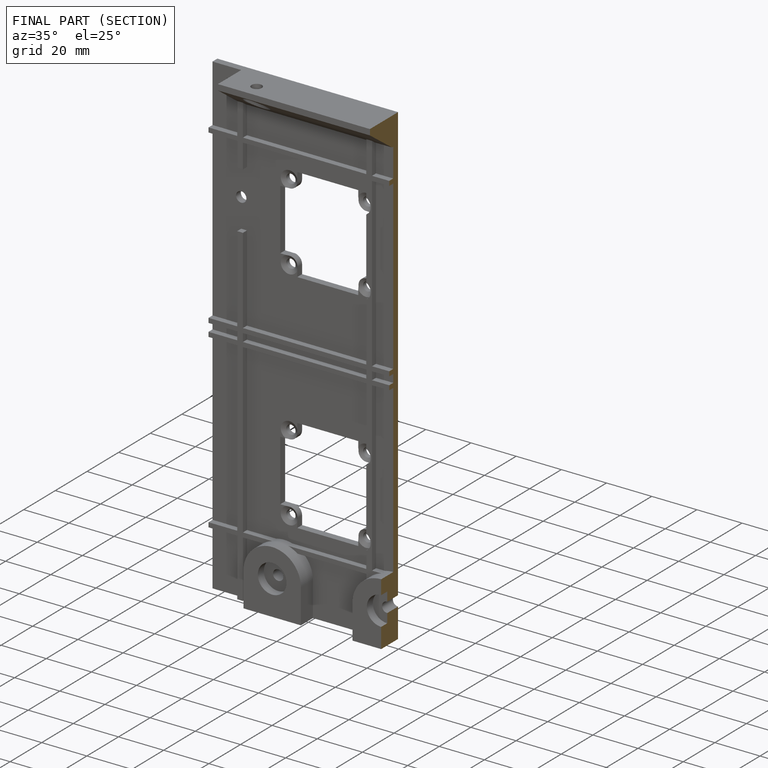
[diagram: finished part — half-section view (interior)]
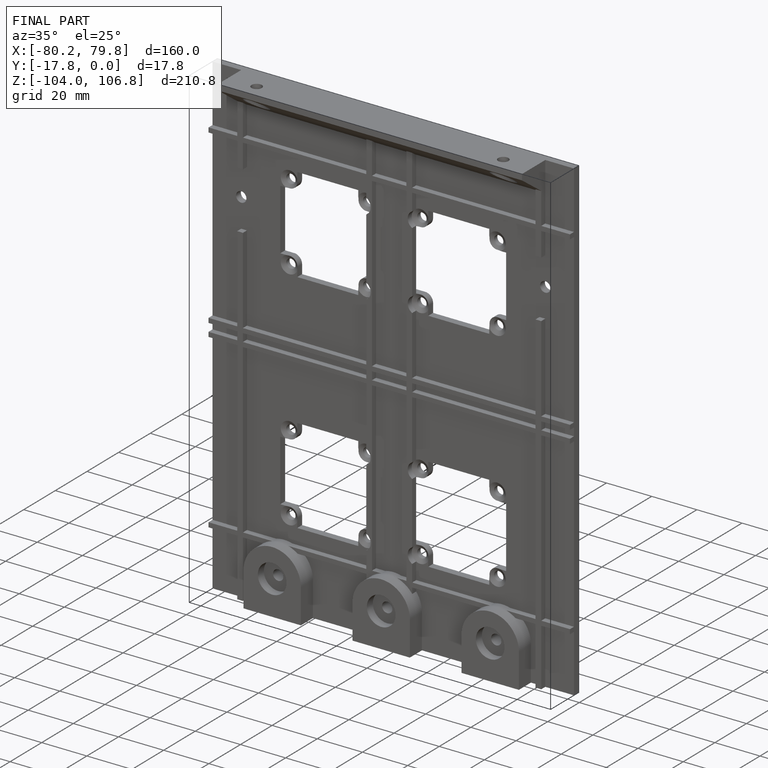
[diagram: finished part — iso view with bounding-box wireframe]
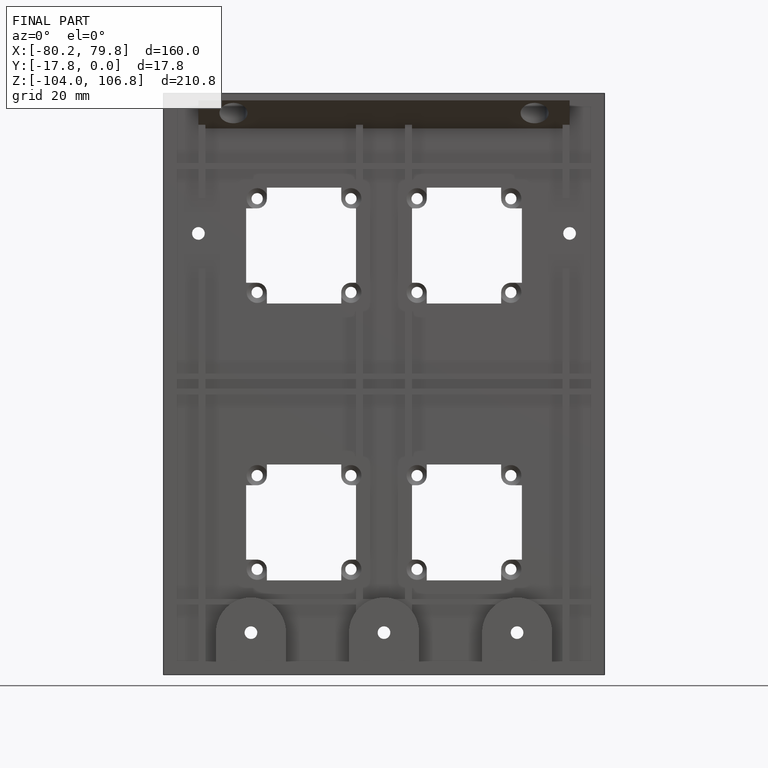
[diagram: finished part — front view with bounding-box wireframe]
